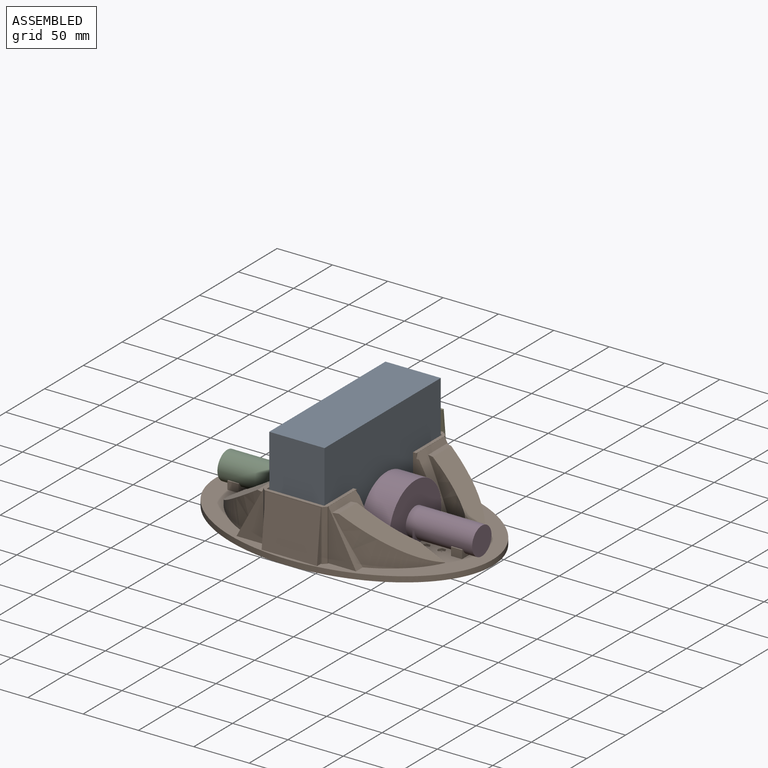
[diagram: assembled view]
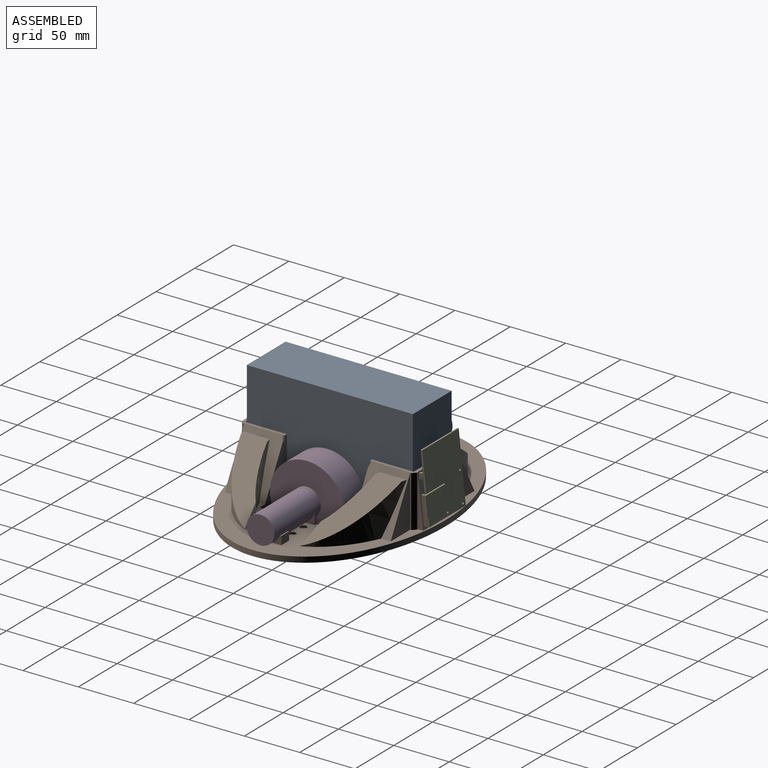
[diagram: assembled view, second angle]
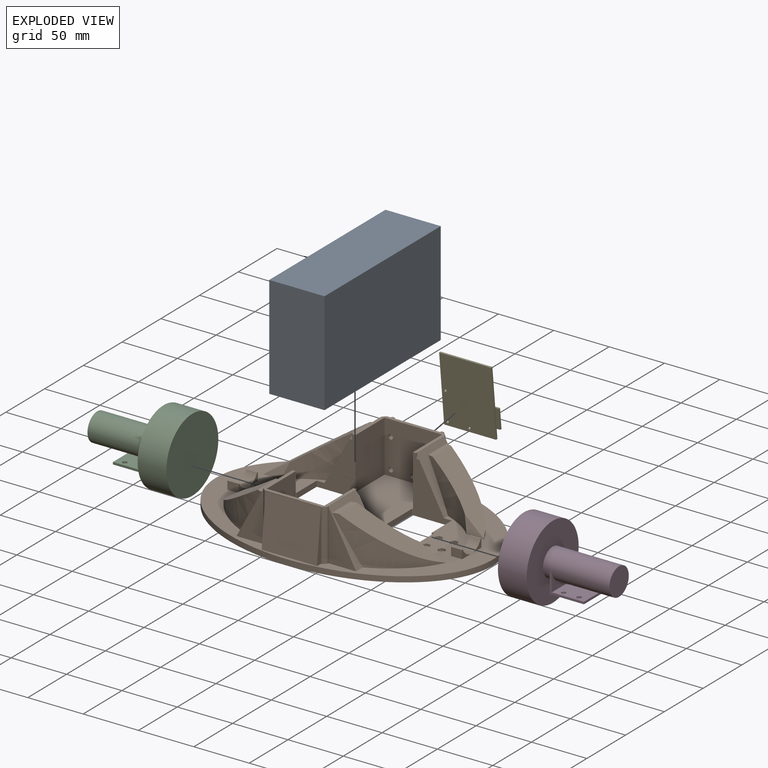
[diagram: exploded view]
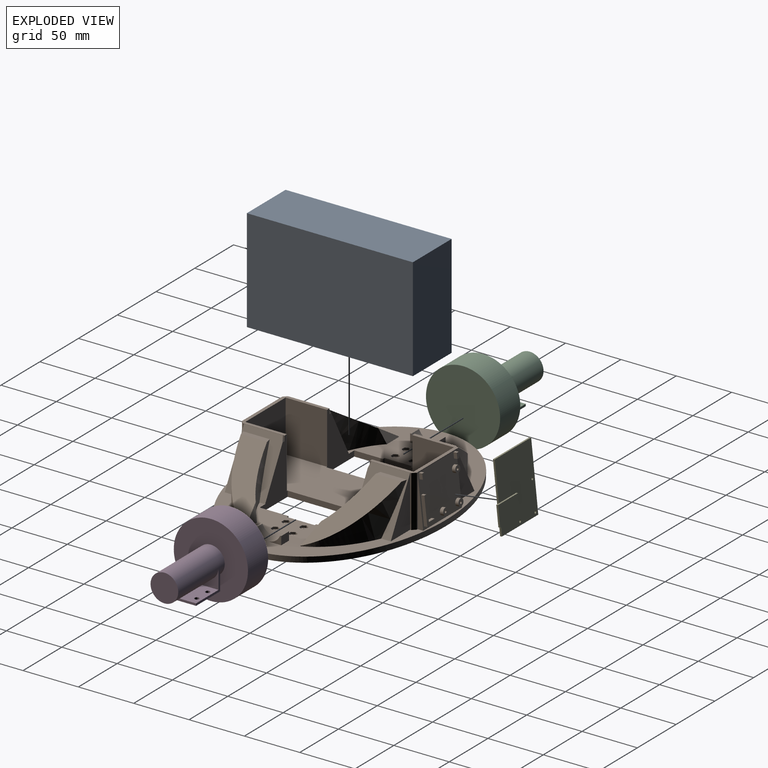
[diagram: exploded view, second angle]
FCSTD DOCUMENT  (FreeCAD 1.0RUnknown)
Label: chassis-v1
License: All rights reserved
LicenseURL: https://en.wikipedia.org/wiki/All_rights_reserved
objects: Sketcher::SketchObject×12, PartDesign::Pocket×7, PartDesign::Pad×6, App::Link×5, PartDesign::Chamfer×3, Spreadsheet::Sheet×1, PartDesign::Plane×1, PartDesign::Body×1, App::Part×1, Assembly::JointGroup×1, Assembly::AssemblyObject×1
note: 74 computed .brp shape members not serialized (recipe doc carries the construction recipe); baked Part::Feature solids carry a one-line shape summary decoded from their .brp
EXTERNAL_REF file=common-components.FCStd obj=Spreadsheet
EXTERNAL_REF file=common-components.FCStd obj=Spreadsheet001
EXTERNAL_REF file=common-components.FCStd obj=Spreadsheet002
EXTERNAL_REF file=common-components.FCStd obj=Part005
EXTERNAL_REF file=common-components.FCStd obj=Part
EXTERNAL_REF file=common-components.FCStd obj=Part002

FEATURE [Spreadsheet::Sheet] Spreadsheet  label="dim"
  cells = A1='Wheel distance; B1(wheel_distance)==<<common-components>>#<<battery_dim>>.width; C1='mm; A2='Angular velocity; B2==<<common-components>>#<<dc_motor_dim>>.max_speed / ((wheel_distance / 2 + <<common-components>>#<<dc_motor_dim>>.wheel_width / 2) / 1000); C2='rad/s; D2==B2 / (2 * pi); E2='Hz; A3='Angular momentum; B3==B2 * <<common-components>>#<<dim>>.max_weight * (<<common-components>>#<<dim>>.max_diameter / 2 / 1000) ^ 2; C3='kg*m^2/s
FEATURE [Sketcher::SketchObject] Sketch015
  ArcFitTolerance = 0
  AttachmentSupport = -> [XY_Plane]
  FullyConstrained = true
  MakeInternals = false
  MapMode = 5
  expr: Constraints[11] = <<common-components>>#<<battery_dim>>.width + <<common-components>>#<<battery_dim>>.tolerance * 2
  expr: Constraints[12] = <<common-components>>#<<battery_dim>>.length + <<common-components>>#<<battery_dim>>.tolerance * 2
  expr: Constraints[50] = <<common-components>>#<<dc_motor_dim>>.wheel_diameter + <<common-components>>#<<dc_motor_dim>>.wheel_tolerance * 2
  sketch-geometry (20):
    g0: LineSegment StartX=-26 StartY=76 StartZ=0 EndX=26 EndY=76 EndZ=0
    g1: LineSegment [constr] StartX=26 StartY=76 StartZ=0 EndX=26 EndY=-76 EndZ=0
    g2: LineSegment StartX=26 StartY=-76 StartZ=0 EndX=-26 EndY=-76 EndZ=0
    g3: LineSegment [constr] StartX=-26 StartY=-76 StartZ=0 EndX=-26 EndY=76 EndZ=0
    g4: GeomPoint X=1.1e-15 Y=-76 Z=0
    g5: GeomPoint X=-1.1e-15 Y=76 Z=0
    g6: LineSegment StartX=26 StartY=76 StartZ=0 EndX=26 EndY=38.5 EndZ=0
    g7: LineSegment StartX=26 StartY=38.5 StartZ=0 EndX=29 EndY=38.5 EndZ=0
    g8: LineSegment StartX=29 StartY=38.5 StartZ=0 EndX=29 EndY=79 EndZ=0
    g9: LineSegment StartX=29 StartY=79 StartZ=0 EndX=-29 EndY=79 EndZ=0
    g10: LineSegment StartX=-29 StartY=79 StartZ=0 EndX=-29 EndY=38.5 EndZ=0
    g11: LineSegment StartX=-29 StartY=38.5 StartZ=0 EndX=-26 EndY=38.5 EndZ=0
    g12: LineSegment StartX=-26 StartY=38.5 StartZ=0 EndX=-26 EndY=76 EndZ=0
    g13: LineSegment StartX=-26 StartY=-38.5 StartZ=0 EndX=-26 EndY=-76 EndZ=0
    g14: LineSegment StartX=-26 StartY=-38.5 StartZ=0 EndX=-29 EndY=-38.5 EndZ=0
    g15: LineSegment StartX=-29 StartY=-38.5 StartZ=0 EndX=-29 EndY=-79 EndZ=0
    g16: LineSegment StartX=-29 StartY=-79 StartZ=0 EndX=29 EndY=-79 EndZ=0
    g17: LineSegment StartX=29 StartY=-79 StartZ=0 EndX=29 EndY=-38.5 EndZ=0
    g18: LineSegment StartX=29 StartY=-38.5 StartZ=0 EndX=26 EndY=-38.5 EndZ=0
    g19: LineSegment StartX=26 StartY=-38.5 StartZ=0 EndX=26 EndY=-76 EndZ=0
  constraints (53):
    c: Coincident(g0,g1)
    c: Coincident(g1,g2)
    c: Coincident(g2,g3)
    c: Coincident(g3,g0)
    c: Horizontal(g0)
    c: Horizontal(g2)
    c: Vertical(g1)
    c: Vertical(g3)
    c: Symmetric(g2,g1,g4)
    c: Symmetric(g0,g0,g5)
    c: Symmetric(g5,g4,g-1)
    c: Distance(g0) = 52
    c: Distance(g1) = 152
    c: PointOnObject(g6,g1)
    c: Coincident(g7,g6)
    c: Horizontal(g7)
    c: Coincident(g8,g7)
    c: Vertical(g8)
    c: Coincident(g9,g8)
    c: Horizontal(g9)
    c: Coincident(g10,g9)
    c: Vertical(g10)
    c: Coincident(g11,g10)
    c: PointOnObject(g11,g3)
    c: Horizontal(g11)
    c: Coincident(g12,g11)
    c: PointOnObject(g13,g3)
    c: Coincident(g13,g2)
    c: Coincident(g14,g13)
    c: Horizontal(g14)
    c: Coincident(g15,g14)
    c: Vertical(g15)
    c: Coincident(g16,g15)
    c: Horizontal(g16)
    c: Coincident(g17,g16)
    c: Vertical(g17)
    c: Coincident(g18,g17)
    c: PointOnObject(g18,g1)
    c: Coincident(g19,g18)
    c: Coincident(g19,g1)
    c: Horizontal(g18)
    c: Equal(g8,g10)
    c: Equal(g15,g17)
    c: Equal(g15,g10)
    c: Equal(g11,g7)
    c: Equal(g11,g14)
    c: Equal(g14,g18)
    c: Distance(g11) = 3
    c: DistanceY(g0,g9) = 3
    c: DistanceY(g15,g2) = 3
    c: DistanceY(g13,g11) = 77
    c: Coincident(g12,g0)
    c: Coincident(g6,g0)
FEATURE [Sketcher::SketchObject] Sketch008
  ArcFitTolerance = 0
  AttachmentSupport = -> [YZ_Plane]
  FullyConstrained = true
  MakeInternals = false
  MapMode = 5
  Placement = pos=(0,0,0) rot=(0.57735,0.57735,0.57735;2.0944rad)
  expr: Constraints[1] = <<common-components>>#<<dc_motor_dim>>.motor_diameter
  expr: Constraints[2] = <<common-components>>#<<dc_motor_dim>>.bracket_motor_distance + <<common-components>>#<<dc_motor_dim>>.motor_diameter / 2
  sketch-geometry (1):
    g0: Circle CenterX=0 CenterY=17.5 CenterZ=0 NormalX=0 NormalY=0 NormalZ=1 AngleXU=0 Radius=12.5
  constraints (3):
    c: PointOnObject(g0,g-2)
    c: Diameter(g0) = 25
    c: DistanceY(g-1,g0) = 17.5
FEATURE [Sketcher::SketchObject] Sketch007
  ArcFitTolerance = 0
  AttachmentSupport = -> [XY_Plane]
  FullyConstrained = true
  MakeInternals = false
  MapMode = 5
  expr: Constraints[27] = <<common-components>>#<<dc_motor_dim>>.motor_diameter
  expr: Constraints[5] = <<dim>>.wheel_distance / 2 + <<common-components>>#<<dc_motor_dim>>.wheel_tolerance * 2 + <<common-components>>#<<dc_motor_dim>>.wheel_width + <<common-components>>#<<dc_motor_dim>>.wheel_bracket_distance + <<common-components>>#<<dc_motor_dim>>.bracket_length
  sketch-geometry (10):
    g0: LineSegment [constr] StartX=0 StartY=0 StartZ=0 EndX=-96 EndY=0 EndZ=0
    g1: LineSegment [constr] StartX=0 StartY=0 StartZ=0 EndX=96 EndY=0 EndZ=0
    g2: LineSegment StartX=-96 StartY=12.5 StartZ=0 EndX=-106 EndY=12.5 EndZ=0
    g3: LineSegment StartX=-106 StartY=12.5 StartZ=0 EndX=-106 EndY=-12.5 EndZ=0
    g4: LineSegment StartX=-106 StartY=-12.5 StartZ=0 EndX=-96 EndY=-12.5 EndZ=0
    g5: LineSegment StartX=-96 StartY=-12.5 StartZ=0 EndX=-96 EndY=12.5 EndZ=0
    g6: LineSegment StartX=96 StartY=12.5 StartZ=0 EndX=106 EndY=12.5 EndZ=0
    g7: LineSegment StartX=106 StartY=12.5 StartZ=0 EndX=106 EndY=-12.5 EndZ=0
    g8: LineSegment StartX=106 StartY=-12.5 StartZ=0 EndX=96 EndY=-12.5 EndZ=0
    g9: LineSegment StartX=96 StartY=-12.5 StartZ=0 EndX=96 EndY=12.5 EndZ=0
  constraints (28):
    c: Coincident(g0,g-1)
    c: Coincident(g1,g0)
    c: Horizontal(g1)
    c: Horizontal(g0)
    c: Equal(g1,g0)
    c: Distance(g0) = 96
    c: Coincident(g2,g3)
    c: Coincident(g3,g4)
    c: Coincident(g4,g5)
    c: Coincident(g5,g2)
    c: Horizontal(g2)
    c: Horizontal(g4)
    c: Vertical(g3)
    c: Vertical(g5)
    c: Coincident(g6,g7)
    c: Coincident(g7,g8)
    c: Coincident(g8,g9)
    c: Coincident(g9,g6)
    c: Horizontal(g6)
    c: Horizontal(g8)
    c: Vertical(g7)
    c: Vertical(g9)
    c: Symmetric(g6,g8,g1)
    c: Symmetric(g2,g4,g0)
    c: Distance(g2) = 10
    c: Equal(g9,g5)
    c: Equal(g2,g6)
    c: Distance(g3) = 25
FEATURE [Sketcher::SketchObject] Sketch019
  ArcFitTolerance = 0
  AttachmentSupport = -> [XZ_Plane]
  FullyConstrained = true
  MakeInternals = false
  MapMode = 5
  Placement = pos=(0,0,0) rot=(1,0,0;1.5708rad)
  expr: Constraints[14] = <<common-components>>#<<battery_dim>>.width + <<common-components>>#<<battery_dim>>.tolerance * 2 + 3 * 2
  expr: Constraints[15] = <<common-components>>#<<battery_dim>>.height / 2 + 5
  sketch-geometry (7):
    g0: LineSegment StartX=29 StartY=51.5 StartZ=0 EndX=100 EndY=5 EndZ=0
    g1: LineSegment StartX=100 StartY=5 StartZ=0 EndX=100 EndY=52.5 EndZ=0
    g2: LineSegment StartX=100 StartY=52.5 StartZ=0 EndX=-100 EndY=52.5 EndZ=0
    g3: LineSegment StartX=-100 StartY=52.5 StartZ=0 EndX=-100 EndY=5 EndZ=0
    g4: LineSegment StartX=-100 StartY=5 StartZ=0 EndX=-29 EndY=51.5 EndZ=0
    g5: LineSegment StartX=-29 StartY=51.5 StartZ=0 EndX=29 EndY=51.5 EndZ=0
    g6: GeomPoint [constr] X=1.5e-15 Y=52.5 Z=0
  constraints (19):
    c: Coincident(g1,g0)
    c: Coincident(g2,g1)
    c: Horizontal(g2)
    c: Coincident(g3,g2)
    c: Coincident(g4,g3)
    c: Coincident(g5,g4)
    c: Coincident(g5,g0)
    c: Horizontal(g5)
    c: Vertical(g1)
    c: Vertical(g3)
    c: Equal(g0,g4)
    c: Equal(g3,g1)
    c: Symmetric(g1,g2,g6)
    c: PointOnObject(g6,g-2)
    c: Distance(g5) = 58
    c: DistanceY(g-1,g0) = 51.5
    c: DistanceY(g0,g1) = 1
    c: DistanceY(g-1,g3) = 5
    c: DistanceX(g2,g1) = 200
FEATURE [Sketcher::SketchObject] Sketch018
  ArcFitTolerance = 0
  AttachmentSupport = -> [YZ_Plane]
  FullyConstrained = true
  MakeInternals = false
  MapMode = 5
  Placement = pos=(0,0,0) rot=(0.57735,0.57735,0.57735;2.0944rad)
  expr: Constraints[10] = <<common-components>>#<<battery_dim>>.height / 2 + 5
  sketch-geometry (5):
    g0: LineSegment StartX=-40 StartY=51.5 StartZ=0 EndX=40 EndY=51.5 EndZ=0
    g1: LineSegment StartX=40 StartY=51.5 StartZ=0 EndX=25 EndY=5 EndZ=0
    g2: LineSegment StartX=25 StartY=5 StartZ=0 EndX=-25 EndY=5 EndZ=0
    g3: LineSegment StartX=-25 StartY=5 StartZ=0 EndX=-40 EndY=51.5 EndZ=0
    g4: GeomPoint [constr] X=0 Y=51.5 Z=0
  constraints (13):
    c: Horizontal(g0)
    c: Coincident(g1,g0)
    c: Coincident(g2,g1)
    c: Coincident(g3,g2)
    c: Coincident(g3,g0)
    c: Horizontal(g2)
    c: Equal(g1,g3)
    c: Symmetric(g0,g0,g4)
    c: PointOnObject(g4,g-2)
    c: DistanceY(g-1,g1) = 5
    c: DistanceY(g-1,g0) = 51.5
    c: Distance(g2) = 50
    c: Distance(g0) = 80
FEATURE [Sketcher::SketchObject] Sketch017
  ArcFitTolerance = 0
  AttachmentSupport = -> [XY_Plane]
  FullyConstrained = false
  MakeInternals = false
  MapMode = 5
  expr: Constraints[21] = <<common-components>>#<<battery_dim>>.width / 2 + <<common-components>>#<<battery_dim>>.tolerance
  expr: Constraints[22] = <<common-components>>#<<battery_dim>>.length
  expr: Constraints[23] = <<common-components>>#<<dc_motor_dim>>.wheel_diameter + <<common-components>>#<<dc_motor_dim>>.wheel_tolerance * 2 + 25
  expr: Constraints[44] = <<common-components>>#<<battery_dim>>.width / 2 + <<common-components>>#<<battery_dim>>.tolerance
  sketch-geometry (22):
    g0: ArcOfEllipse CenterX=0 CenterY=0 CenterZ=0 NormalX=0 NormalY=0 NormalZ=1 MajorRadius=105 MinorRadius=77.4108 AngleXU=-3.14159 StartAngle=4.96261 EndAngle=7.60376
    g1: LineSegment [constr] StartX=-105 StartY=0 StartZ=0 EndX=105 EndY=0 EndZ=0
    g2: LineSegment [constr] StartX=0 StartY=-77.4108 StartZ=0 EndX=0 EndY=77.4108 EndZ=0
    g3: GeomPoint [constr] X=-70.9406 Y=-8.7e-15 Z=0
    g4: GeomPoint [constr] X=70.9406 Y=0 Z=0
    g5: ArcOfEllipse CenterX=0 CenterY=0 CenterZ=0 NormalX=0 NormalY=0 NormalZ=1 MajorRadius=95 MinorRadius=53.0245 AngleXU=-3.14159 StartAngle=4.98961 EndAngle=7.57676
    g6: LineSegment [constr] StartX=-95 StartY=0 StartZ=0 EndX=95 EndY=0 EndZ=0
    g7: LineSegment [constr] StartX=0 StartY=-53.0245 StartZ=0 EndX=0 EndY=53.0245 EndZ=0
    g8: GeomPoint [constr] X=-78.8251 Y=-9.7e-15 Z=0
    g9: GeomPoint [constr] X=78.8251 Y=0 Z=0
    g10: LineSegment StartX=-26 StartY=-51 StartZ=0 EndX=-26 EndY=-75 EndZ=0
    g11: LineSegment StartX=-26 StartY=75 StartZ=0 EndX=-26 EndY=51 EndZ=0
    g12: LineSegment [constr] StartX=-26 StartY=51 StartZ=0 EndX=-26 EndY=-51 EndZ=0
    g13: LineSegment [constr] StartX=0 StartY=119.322 StartZ=0 EndX=0 EndY=-85.8681 EndZ=0
    g14: ArcOfEllipse CenterX=0 CenterY=0 CenterZ=0 NormalX=0 NormalY=0 NormalZ=1 MajorRadius=104.992 MinorRadius=77.4111 AngleXU=4e-16 StartAngle=4.96263 EndAngle=7.60374
    g15: GeomPoint [constr] X=70.9286 Y=2.84e-14 Z=0
    g16: ArcOfEllipse CenterX=0 CenterY=0 CenterZ=0 NormalX=0 NormalY=0 NormalZ=1 MajorRadius=95.0275 MinorRadius=53.0233 AngleXU=2e-16 StartAngle=4.98953 EndAngle=7.57684
    g17: GeomPoint [constr] X=78.8591 Y=1.58e-14 Z=0
    g18: LineSegment StartX=26 StartY=-51 StartZ=0 EndX=26 EndY=-75 EndZ=0
    g19: LineSegment StartX=26 StartY=75 StartZ=0 EndX=26 EndY=51 EndZ=0
    g20: LineSegment [constr] StartX=26 StartY=51 StartZ=0 EndX=26 EndY=-51 EndZ=0
    g21: GeomPoint [constr] X=26 Y=0 Z=0
  constraints (41):
    c: InternalAlignment(g1-g4 -> g0) x4
    c: Coincident(g0,g-1)
    c: InternalAlignment(g6-g9 -> g5) x4
    c: Coincident(g5,g0)
    c: PointOnObject(g1,g-1)
    c: PointOnObject(g6,g1)
    c: Coincident(g10,g5)
    c: Coincident(g10,g0)
    c: Coincident(g11,g0)
    c: Coincident(g11,g5)
    c: Vertical(g11)
    c: Vertical(g10)
    c: Coincident(g12,g5)
    c: Coincident(g12,g5)
    c: Vertical(g12)
    c: DistanceX(g5,g0) = 26
    c: DistanceY(g0,g0) = 150
    c: Distance(g12) = 102
    c: DistanceX(g6,g0) = 95
    c: DistanceX(g1,g0) = 105
    c: PointOnObject(g13,g-2)
    c: PointOnObject(g13,g-2)
    c: InternalAlignment(g15,g14)
    c: InternalAlignment(g17,g16)
    c: Coincident(g16,g14)
    c: Coincident(g18,g16)
    c: Coincident(g18,g14)
    c: Coincident(g19,g14)
    c: Coincident(g19,g16)
    c: Coincident(g20,g16)
    c: Coincident(g20,g16)
    c: Distance(g20) = 102
    c: Coincident(g14,g0)
    c: Vertical(g19)
    c: Vertical(g20)
    c: Vertical(g18)
    c: DistanceY(g14,g0) = 0
    c: DistanceY(g0,g14) = 0
    c: DistanceX(g0,g16) = 26
    c: PointOnObject(g21,g1)
    c: Symmetric(g16,g16,g21)
FEATURE [Sketcher::SketchObject] Sketch006
  ArcFitTolerance = 0
  AttachmentSupport = -> [XY_Plane]
  FullyConstrained = true
  MakeInternals = false
  MapMode = 5
  expr: Constraints[10] = <<common-components>>#<<battery_dim>>.length
  expr: Constraints[11] = <<common-components>>#<<battery_dim>>.width
  expr: Constraints[16] = <<common-components>>#<<dc_motor_dim>>.wheel_diameter + <<common-components>>#<<dc_motor_dim>>.wheel_tolerance * 2
  expr: Constraints[47] = <<common-components>>#<<battery_dim>>.tolerance
  expr: Constraints[48] = <<common-components>>#<<battery_dim>>.tolerance
  expr: Constraints[49] = <<common-components>>#<<battery_dim>>.tolerance
  expr: Constraints[60] = <<common-components>>#<<battery_dim>>.length / 2 - <<common-components>>#<<dc_motor_dim>>.wheel_diameter / 2 - <<common-components>>#<<dc_motor_dim>>.wheel_tolerance
  expr: Constraints[89] = <<common-components>>#<<battery_dim>>.tolerance
  expr: Constraints[90] = <<common-components>>#<<battery_dim>>.tolerance
  expr: Constraints[91] = <<common-components>>#<<battery_dim>>.tolerance
  sketch-geometry (40):
    g0: LineSegment [constr] StartX=-25 StartY=75 StartZ=0 EndX=25 EndY=75 EndZ=0
    g1: LineSegment [constr] StartX=25 StartY=75 StartZ=0 EndX=25 EndY=-75 EndZ=0
    g2: LineSegment [constr] StartX=25 StartY=-75 StartZ=0 EndX=-25 EndY=-75 EndZ=0
    g3: LineSegment [constr] StartX=-25 StartY=-75 StartZ=0 EndX=-25 EndY=75 EndZ=0
    g4: GeomPoint [constr] X=0 Y=0 Z=0
    g5: GeomPoint [constr] X=-25 Y=38.5 Z=0
    g6: GeomPoint [constr] X=-25 Y=-38.5 Z=0
    g7: GeomPoint [constr] X=25 Y=38.5 Z=0
    g8: GeomPoint [constr] X=25 Y=-38.5 Z=0
    g9: GeomPoint [constr] X=25 Y=0 Z=0
    g10: LineSegment StartX=-26 StartY=38.5 StartZ=0 EndX=-26 EndY=75 EndZ=0
    g11: LineSegment StartX=-26 StartY=75 StartZ=0 EndX=-29 EndY=75 EndZ=0
    g12: LineSegment StartX=-29 StartY=75 StartZ=0 EndX=-29 EndY=38.5 EndZ=0
    g13: LineSegment StartX=-29 StartY=38.5 StartZ=0 EndX=-26 EndY=38.5 EndZ=0
    g14: LineSegment StartX=-26 StartY=-38.5 StartZ=0 EndX=-29 EndY=-38.5 EndZ=0
    g15: LineSegment StartX=-29 StartY=-38.5 StartZ=0 EndX=-29 EndY=-75 EndZ=0
    g16: LineSegment StartX=-29 StartY=-75 StartZ=0 EndX=-26 EndY=-75 EndZ=0
    g17: LineSegment StartX=-26 StartY=-75 StartZ=0 EndX=-26 EndY=-38.5 EndZ=0
    g18: LineSegment StartX=-25 StartY=76 StartZ=0 EndX=25 EndY=76 EndZ=0
    g19: LineSegment StartX=25 StartY=76 StartZ=0 EndX=25 EndY=79 EndZ=0
    g20: LineSegment StartX=25 StartY=79 StartZ=0 EndX=-25 EndY=79 EndZ=0
    g21: LineSegment StartX=-25 StartY=79 StartZ=0 EndX=-25 EndY=76 EndZ=0
    g22: GeomPoint [constr] X=0 Y=76 Z=0
    g23: LineSegment [constr] StartX=-26 StartY=56.75 StartZ=0 EndX=-25 EndY=56.75 EndZ=0
    g24: LineSegment [constr] StartX=-26 StartY=-56.75 StartZ=0 EndX=-25 EndY=-56.75 EndZ=0
    g25: LineSegment StartX=26 StartY=38.5 StartZ=0 EndX=26 EndY=75 EndZ=0
    g26: LineSegment StartX=26 StartY=75 StartZ=0 EndX=29 EndY=75 EndZ=0
    g27: LineSegment StartX=29 StartY=75 StartZ=0 EndX=29 EndY=38.5 EndZ=0
    g28: LineSegment StartX=29 StartY=38.5 StartZ=0 EndX=26 EndY=38.5 EndZ=0
    g29: LineSegment StartX=26 StartY=-38.5 StartZ=0 EndX=29 EndY=-38.5 EndZ=0
    g30: LineSegment StartX=29 StartY=-38.5 StartZ=0 EndX=29 EndY=-75 EndZ=0
    g31: LineSegment StartX=29 StartY=-75 StartZ=0 EndX=26 EndY=-75 EndZ=0
    g32: LineSegment StartX=26 StartY=-75 StartZ=0 EndX=26 EndY=-38.5 EndZ=0
    g33: LineSegment StartX=-25 StartY=-76 StartZ=0 EndX=25 EndY=-76 EndZ=0
    g34: LineSegment StartX=25 StartY=-76 StartZ=0 EndX=25 EndY=-79 EndZ=0
    g35: LineSegment StartX=25 StartY=-79 StartZ=0 EndX=-25 EndY=-79 EndZ=0
    g36: LineSegment StartX=-25 StartY=-79 StartZ=0 EndX=-25 EndY=-76 EndZ=0
    g37: GeomPoint [constr] X=0 Y=-76 Z=0
    g38: LineSegment [constr] StartX=25 StartY=-56.75 StartZ=0 EndX=26 EndY=-56.75 EndZ=0
    g39: LineSegment [constr] StartX=25 StartY=56.75 StartZ=0 EndX=26 EndY=56.75 EndZ=0
  constraints (103):
    c: Coincident(g0,g1)
    c: Coincident(g1,g2)
    c: Coincident(g2,g3)
    c: Coincident(g3,g0)
    c: Horizontal(g0)
    c: Horizontal(g2)
    c: Vertical(g1)
    c: Vertical(g3)
    c: Symmetric(g1,g0,g4)
    c: Coincident(g4,g-1)
    c: Distance(g1) = 150
    c: Distance(g0) = 50
    c: PointOnObject(g5,g3)
    c: PointOnObject(g6,g3)
    c: PointOnObject(g7,g1)
    c: PointOnObject(g8,g1)
    c: DistanceY(g8,g7) = 77
    c: DistanceY(g5,g7) = 0
    c: DistanceY(g8,g6) = 0
    c: Symmetric(g7,g8,g9)
    c: PointOnObject(g9,g-1)
    c: Vertical(g10)
    c: Coincident(g11,g10)
    c: Coincident(g12,g11)
    c: Vertical(g12)
    c: Coincident(g13,g12)
    c: Coincident(g13,g10)
    c: Horizontal(g14)
    c: Coincident(g15,g14)
    c: Vertical(g15)
    c: Coincident(g16,g15)
    c: Horizontal(g16)
    c: Coincident(g17,g16)
    c: Coincident(g17,g14)
    c: Vertical(g17)
    c: Equal(g14,g13)
    c: Horizontal(g13)
    c: Equal(g15,g12)
    c: Horizontal(g11)
    c: Horizontal(g18)
    c: Coincident(g19,g18)
    c: Vertical(g19)
    c: Coincident(g20,g19)
    c: Horizontal(g20)
    c: Coincident(g21,g20)
    c: Coincident(g21,g18)
    c: Vertical(g21)
    c: DistanceX(g10,g0) = 1
    c: DistanceX(g16,g2) = 1
    c: DistanceY(g0,g18) = 1
    c: Equal(g21,g11)
    c: Symmetric(g18,g18,g22)
    c: PointOnObject(g22,g-2)
    c: Horizontal(g23)
    c: Horizontal(g24)
    c: Symmetric(g0,g5,g23)
    c: Symmetric(g6,g2,g24)
    c: Symmetric(g14,g16,g24)
    c: Symmetric(g10,g10,g23)
    c: Distance(g11) = 3
    c: Distance(g12) = 36.5
    c: Vertical(g25)
    c: Coincident(g26,g25)
    c: Coincident(g27,g26)
    c: Vertical(g27)
    c: Coincident(g28,g27)
    c: Coincident(g28,g25)
    c: Horizontal(g29)
    c: Coincident(g30,g29)
    c: Vertical(g30)
    c: Coincident(g31,g30)
    c: Horizontal(g31)
    c: Coincident(g32,g31)
    c: Coincident(g32,g29)
    c: Vertical(g32)
    c: Equal(g29,g28)
    c: Horizontal(g28)
    c: Equal(g30,g27)
    c: Horizontal(g26)
    c: Distance(g26) = 3
    c: Horizontal(g33)
    c: Coincident(g34,g33)
    c: Vertical(g34)
    c: Coincident(g35,g34)
    c: Horizontal(g35)
    c: Coincident(g36,g35)
    c: Coincident(g36,g33)
    c: Vertical(g36)
    c: Symmetric(g33,g33,g37)
    c: DistanceY(g33,g1) = 1
    c: DistanceX(g0,g25) = 1
    c: DistanceX(g1,g31) = 1
    c: Equal(g31,g34)
    c: Horizontal(g38)
    c: Horizontal(g39)
    c: Symmetric(g25,g25,g39)
    c: Symmetric(g29,g31,g38)
    c: Symmetric(g8,g1,g38)
    c: Symmetric(g0,g7,g39)
    c: PointOnObject(g37,g-2)
    c: Equal(g27,g10)
    c: Equal(g33,g18)
    c: Equal(g18,g0)
FEATURE [Sketcher::SketchObject] Sketch
  ArcFitTolerance = 0
  AttachmentSupport = -> [XY_Plane]
  FullyConstrained = false
  MakeInternals = false
  MapMode = 5
  expr: Constraints[11] = <<common-components>>#<<dc_motor_dim>>.wheel_diameter + <<common-components>>#<<dc_motor_dim>>.wheel_tolerance * 2
  expr: Constraints[12] = <<common-components>>#<<dc_motor_dim>>.wheel_width + <<common-components>>#<<dc_motor_dim>>.wheel_tolerance
  expr: Constraints[164] = <<common-components>>#<<dc_motor_dim>>.bracket_thickness
  expr: Constraints[171] = <<common-components>>#<<dc_motor_dim>>.bracket_length / 2 + <<common-components>>#<<dc_motor_dim>>.bracket_thickness - 2.5
  expr: Constraints[22] = <<common-components>>#<<battery_dim>>.length
  expr: Constraints[23] = <<common-components>>#<<battery_dim>>.width
  expr: Constraints[25] = <<common-components>>#<<dim>>.max_diameter
  expr: Constraints[41] = <<common-components>>#<<dc_motor_dim>>.bracket_screw_diameter
  expr: Constraints[45] = <<common-components>>#<<dc_motor_dim>>.bracket_hole_width
  expr: Constraints[46] = <<common-components>>#<<dc_motor_dim>>.bracket_hole_length
  expr: Constraints[57] = <<common-components>>#<<dc_motor_dim>>.motor_diameter
  expr: Constraints[63] = <<common-components>>#<<dc_motor_dim>>.wheel_tolerance
  expr: Constraints[67] = <<common-components>>#<<dc_motor_dim>>.wheel_tolerance
  expr: Constraints[86] = <<common-components>>#<<dc_motor_dim>>.bracket_length + <<common-components>>#<<dc_motor_dim>>.bracket_thickness
  sketch-geometry (81):
    g0: Circle [constr] CenterX=0 CenterY=0 CenterZ=0 NormalX=0 NormalY=0 NormalZ=1 AngleXU=0 Radius=125
    g1: LineSegment StartX=-56 StartY=38.5 StartZ=0 EndX=-25 EndY=38.5 EndZ=0
    g2: LineSegment StartX=-25 StartY=38.5 StartZ=0 EndX=-25 EndY=-38.5 EndZ=0
    g3: LineSegment StartX=-25 StartY=-38.5 StartZ=0 EndX=-56 EndY=-38.5 EndZ=0
    g4: LineSegment [constr] StartX=-56 StartY=-38.5 StartZ=0 EndX=-56 EndY=38.5 EndZ=0
    g5: GeomPoint X=-56 Y=0 Z=0
    g6: GeomPoint X=0 Y=0 Z=0
    g7: LineSegment [constr] StartX=-56 StartY=-12.5 StartZ=0 EndX=-56 EndY=12.5 EndZ=0
    g8: LineSegment [constr] StartX=-25 StartY=-75 StartZ=0 EndX=25 EndY=-75 EndZ=0
    g9: LineSegment [constr] StartX=25 StartY=-75 StartZ=0 EndX=25 EndY=75 EndZ=0
    g10: LineSegment [constr] StartX=25 StartY=75 StartZ=0 EndX=-25 EndY=75 EndZ=0
    g11: LineSegment [constr] StartX=-25 StartY=75 StartZ=0 EndX=-25 EndY=-75 EndZ=0
    g12: GeomPoint [constr] X=4e-16 Y=-75 Z=0
    g13: GeomPoint [constr] X=-4e-16 Y=75 Z=0
    g14: GeomPoint [constr] X=0 Y=0 Z=0
    g15: Circle CenterX=-70.5 CenterY=8 CenterZ=0 NormalX=0 NormalY=0 NormalZ=1 AngleXU=0 Radius=1.5
    g16: Circle CenterX=-70.5 CenterY=-8 CenterZ=0 NormalX=0 NormalY=0 NormalZ=1 AngleXU=0 Radius=1.5
    g17: Circle CenterX=-84.5 CenterY=-8 CenterZ=0 NormalX=0 NormalY=0 NormalZ=1 AngleXU=0 Radius=1.5
    g18: Circle CenterX=-84.5 CenterY=8 CenterZ=0 NormalX=0 NormalY=0 NormalZ=1 AngleXU=0 Radius=1.5
    g19: LineSegment [constr] StartX=-84.5 StartY=8 StartZ=0 EndX=-70.5 EndY=8 EndZ=0
    g20: LineSegment [constr] StartX=-84.5 StartY=-8 StartZ=0 EndX=-70.5 EndY=-8 EndZ=0
    g21: LineSegment [constr] StartX=-84.5 StartY=-8 StartZ=0 EndX=-84.5 EndY=8 EndZ=0
    g22: GeomPoint [constr] X=-84.5 Y=0 Z=0
    g23: LineSegment [constr] StartX=-56 StartY=38.5 StartZ=0 EndX=-56 EndY=12.5 EndZ=0
    g24: LineSegment [constr] StartX=-56 StartY=-38.5 StartZ=0 EndX=-56 EndY=-12.5 EndZ=0
    g25: LineSegment [constr] StartX=-56 StartY=-12.5 StartZ=0 EndX=-63 EndY=-12.5 EndZ=0
    g26: LineSegment StartX=-63 StartY=-12.5 StartZ=0 EndX=-63 EndY=12.5 EndZ=0
    g27: LineSegment [constr] StartX=-63 StartY=12.5 StartZ=0 EndX=-56 EndY=12.5 EndZ=0
    g28: LineSegment StartX=-56 StartY=38.5 StartZ=0 EndX=-61 EndY=38.5 EndZ=0
    g29: LineSegment StartX=-61 StartY=38.5 StartZ=0 EndX=-61 EndY=12.5 EndZ=0
    g30: LineSegment StartX=-56 StartY=-38.5 StartZ=0 EndX=-61 EndY=-38.5 EndZ=0
    g31: LineSegment StartX=-61 StartY=-38.5 StartZ=0 EndX=-61 EndY=-12.5 EndZ=0
    g32: LineSegment StartX=-63 StartY=12.5 StartZ=0 EndX=-61 EndY=12.5 EndZ=0
    g33: LineSegment StartX=-63 StartY=-12.5 StartZ=0 EndX=-61 EndY=-12.5 EndZ=0
    g34: LineSegment [constr] StartX=-56 StartY=12.5 StartZ=0 EndX=-95 EndY=12.5 EndZ=0
    g35: LineSegment [constr] StartX=-95 StartY=12.5 StartZ=0 EndX=-95 EndY=-12.5 EndZ=0
    g36: LineSegment [constr] StartX=-95 StartY=-12.5 StartZ=0 EndX=-56 EndY=-12.5 EndZ=0
    g37: LineSegment [constr] StartX=-56 StartY=-12.5 StartZ=0 EndX=-56 EndY=12.5 EndZ=0
    g38: GeomPoint [constr] X=-77.5 Y=0 Z=0
    g39: LineSegment [constr] StartX=-77.5 StartY=0 StartZ=0 EndX=-77.5 EndY=8 EndZ=0
    g40: LineSegment StartX=56 StartY=38.5 StartZ=0 EndX=25 EndY=38.5 EndZ=0
    g41: LineSegment StartX=25 StartY=38.5 StartZ=0 EndX=25 EndY=-38.5 EndZ=0
    g42: LineSegment StartX=25 StartY=-38.5 StartZ=0 EndX=56 EndY=-38.5 EndZ=0
    g43: LineSegment [constr] StartX=56 StartY=-38.5 StartZ=0 EndX=56 EndY=38.5 EndZ=0
    g44: GeomPoint X=56 Y=0 Z=0
    g45: LineSegment [constr] StartX=56 StartY=-12.5 StartZ=0 EndX=56 EndY=12.5 EndZ=0
    g46: Circle CenterX=70.5 CenterY=8 CenterZ=0 NormalX=0 NormalY=0 NormalZ=1 AngleXU=0 Radius=1.5
    g47: Circle CenterX=70.5 CenterY=-8 CenterZ=0 NormalX=0 NormalY=0 NormalZ=1 AngleXU=0 Radius=1.5
    g48: Circle CenterX=84.5 CenterY=-8 CenterZ=0 NormalX=0 NormalY=0 NormalZ=1 AngleXU=0 Radius=1.5
    g49: Circle CenterX=84.5 CenterY=8 CenterZ=0 NormalX=0 NormalY=0 NormalZ=1 AngleXU=0 Radius=1.5
    g50: LineSegment [constr] StartX=84.5 StartY=8 StartZ=0 EndX=70.5 EndY=8 EndZ=0
    g51: LineSegment [constr] StartX=84.5 StartY=-8 StartZ=0 EndX=70.5 EndY=-8 EndZ=0
    g52: LineSegment [constr] StartX=84.5 StartY=-8 StartZ=0 EndX=84.5 EndY=8 EndZ=0
    g53: GeomPoint [constr] X=84.5 Y=3.5e-15 Z=0
    g54: LineSegment [constr] StartX=56 StartY=38.5 StartZ=0 EndX=56 EndY=12.5 EndZ=0
    g55: LineSegment [constr] StartX=56 StartY=-38.5 StartZ=0 EndX=56 EndY=-12.5 EndZ=0
    g56: LineSegment [constr] StartX=56 StartY=-12.5 StartZ=0 EndX=63 EndY=-12.5 EndZ=0
    g57: LineSegment StartX=63 StartY=-12.5 StartZ=0 EndX=63 EndY=12.5 EndZ=0
    g58: LineSegment [constr] StartX=63 StartY=12.5 StartZ=0 EndX=56 EndY=12.5 EndZ=0
    g59: LineSegment StartX=56 StartY=38.5 StartZ=0 EndX=61 EndY=38.5 EndZ=0
    g60: LineSegment StartX=61 StartY=38.5 StartZ=0 EndX=61 EndY=12.5 EndZ=0
    g61: LineSegment StartX=56 StartY=-38.5 StartZ=0 EndX=61 EndY=-38.5 EndZ=0
    g62: LineSegment StartX=61 StartY=-38.5 StartZ=0 EndX=61 EndY=-12.5 EndZ=0
    g63: LineSegment StartX=63 StartY=12.5 StartZ=0 EndX=61 EndY=12.5 EndZ=0
    g64: LineSegment StartX=63 StartY=-12.5 StartZ=0 EndX=61 EndY=-12.5 EndZ=0
    g65: LineSegment [constr] StartX=56 StartY=12.5 StartZ=0 EndX=95 EndY=12.5 EndZ=0
    g66: LineSegment [constr] StartX=95 StartY=12.5 StartZ=0 EndX=95 EndY=-12.5 EndZ=0
    g67: LineSegment [constr] StartX=95 StartY=-12.5 StartZ=0 EndX=56 EndY=-12.5 EndZ=0
    g68: LineSegment [constr] StartX=56 StartY=-12.5 StartZ=0 EndX=56 EndY=12.5 EndZ=0
    g69: GeomPoint [constr] X=77.5 Y=0 Z=0
    g70: LineSegment [constr] StartX=77.5 StartY=0 StartZ=0 EndX=77.5 EndY=8 EndZ=0
    g71: LineSegment [constr] StartX=-77.5 StartY=0 StartZ=0 EndX=-63 EndY=0 EndZ=0
    g72: LineSegment [constr] StartX=77.5 StartY=0 StartZ=0 EndX=63 EndY=0 EndZ=0
    g73: Ellipse CenterX=0 CenterY=0 CenterZ=0 NormalX=0 NormalY=0 NormalZ=1 MajorRadius=125 MinorRadius=86.8613 AngleXU=0
    g74: LineSegment [constr] StartX=125 StartY=0 StartZ=0 EndX=-125 EndY=0 EndZ=0
    g75: LineSegment [constr] StartX=0 StartY=86.8613 StartZ=0 EndX=0 EndY=-86.8613 EndZ=0
    g76: GeomPoint [constr] X=89.8895 Y=0 Z=0
    g77: GeomPoint [constr] X=-89.8895 Y=0 Z=0
    g78: GeomPoint [constr] X=125 Y=0 Z=0
    g79: LineSegment [constr] StartX=25 StartY=-75 StartZ=0 EndX=26.49 EndY=-84.8884 EndZ=0
    g80: GeomPoint [constr] X=26.49 Y=-84.8884 Z=0
  constraints (191):
    c: Coincident(g0,g-1)
    c: Coincident(g1,g2)
    c: Coincident(g2,g3)
    c: Coincident(g3,g4)
    c: Coincident(g4,g1)
    c: Horizontal(g1)
    c: Horizontal(g3)
    c: Vertical(g2)
    c: Vertical(g4)
    c: Symmetric(g1,g3,g5)
    c: PointOnObject(g5,g-1)
    c: Distance(g2) = 77
    c: Distance(g1) = 31
    c: Vertical(g7)
    c: Coincident(g8,g9)
    c: Coincident(g9,g10)
    c: Coincident(g10,g11)
    c: Coincident(g11,g8)
    c: Horizontal(g8)
    c: Horizontal(g10)
    c: Vertical(g9)
    c: Vertical(g11)
    c: Distance(g11) = 150
    c: Distance(g10) = 50
    c: Symmetric(g8,g8,g12)
    c: Diameter(g0) = 250
    c: Symmetric(g10,g9,g13)
    c: Symmetric(g13,g12,g14)
    c: Coincident(g14,g6)
    c: Coincident(g19,g18)
    c: Coincident(g19,g15)
    c: Horizontal(g19)
    c: Coincident(g20,g17)
    c: Coincident(g20,g16)
    c: Horizontal(g20)
    c: Coincident(g21,g17)
    c: Coincident(g21,g18)
    c: Vertical(g21)
    c: Equal(g15,g18)
    c: Equal(g18,g17)
    c: Equal(g17,g16)
    c: Diameter(g18) = 3
    c: Equal(g19,g20)
    c: Symmetric(g18,g17,g22)
    c: PointOnObject(g22,g-1)
    c: Distance(g21) = 16
    c: Distance(g19) = 14
    c: Coincident(g23,g1)
    c: Coincident(g24,g3)
    c: Coincident(g25,g24)
    c: Coincident(g26,g25)
    c: Vertical(g26)
    c: Coincident(g27,g26)
    c: Coincident(g27,g23)
    c: Vertical(g23)
    c: Horizontal(g27)
    c: Horizontal(g25)
    c: Distance(g26) = 25
    c: Coincident(g28,g1)
    c: Horizontal(g28)
    c: Coincident(g29,g28)
    c: PointOnObject(g29,g27)
    c: Vertical(g29)
    c: Distance(g28) = 5
    c: Coincident(g30,g3)
    c: Horizontal(g30)
    c: Coincident(g31,g30)
    c: Distance(g30) = 5
    c: Vertical(g31)
    c: Coincident(g32,g26)
    c: Coincident(g32,g29)
    c: Coincident(g33,g26)
    c: Coincident(g33,g31)
    c: Symmetric(g24,g23,g5)
    c: PointOnObject(g31,g25)
    c: Coincident(g34,g35)
    c: Coincident(g35,g36)
    c: Coincident(g36,g37)
    c: Coincident(g37,g34)
    c: Horizontal(g34)
    c: Horizontal(g36)
    c: Vertical(g35)
    c: Vertical(g37)
    c: Coincident(g34,g7)
    c: Equal(g26,g35)
    c: Coincident(g7,g23)
    c: DistanceX(g34,g26) = 32
    c: PointOnObject(g38,g-1)
    c: Coincident(g39,g38)
    c: Vertical(g39)
    c: Symmetric(g18,g15,g39)
    c: Coincident(g40,g41)
    c: Coincident(g41,g42)
    c: Coincident(g42,g43)
    c: Coincident(g43,g40)
    c: Horizontal(g40)
    c: Horizontal(g42)
    c: Vertical(g41)
    c: Vertical(g43)
    c: Symmetric(g40,g42,g44)
    c: Distance(g41) = 77
    c: Distance(g40) = 31
    c: Vertical(g45)
    c: Coincident(g50,g49)
    c: Coincident(g50,g46)
    c: Horizontal(g50)
    c: Coincident(g51,g48)
    c: Coincident(g51,g47)
    c: Horizontal(g51)
    c: Coincident(g52,g48)
    c: Coincident(g52,g49)
    c: Vertical(g52)
    c: Equal(g46,g49)
    c: Equal(g49,g48)
    c: Equal(g48,g47)
    c: Equal(g50,g51)
    c: Symmetric(g49,g48,g53)
    c: Distance(g52) = 16
    c: Distance(g50) = 14
    c: Coincident(g54,g40)
    c: Coincident(g55,g42)
    c: Coincident(g56,g55)
    c: Coincident(g57,g56)
    c: Vertical(g57)
    c: Coincident(g58,g57)
    c: Coincident(g58,g54)
    c: Vertical(g54)
    c: Horizontal(g58)
    c: Horizontal(g56)
    c: Distance(g57) = 25
    c: Coincident(g59,g40)
    c: Horizontal(g59)
    c: Coincident(g60,g59)
    c: PointOnObject(g60,g58)
    c: Vertical(g60)
    c: Distance(g59) = 5
    c: Coincident(g61,g42)
    c: Horizontal(g61)
    c: Coincident(g62,g61)
    c: Distance(g61) = 5
    c: Vertical(g62)
    c: Coincident(g63,g57)
    c: Coincident(g63,g60)
    c: Coincident(g64,g57)
    c: Coincident(g64,g62)
    c: Symmetric(g55,g54,g44)
    c: PointOnObject(g62,g56)
    c: Coincident(g65,g66)
    c: Coincident(g66,g67)
    c: Coincident(g67,g68)
    c: Coincident(g68,g65)
    c: Horizontal(g65)
    c: Horizontal(g67)
    c: Vertical(g66)
    c: Vertical(g68)
    c: Coincident(g65,g45)
    c: Equal(g57,g66)
    c: Coincident(g45,g54)
    c: Coincident(g70,g69)
    c: Vertical(g70)
    c: Symmetric(g49,g46,g70)
    c: PointOnObject(g1,g11)
    c: PointOnObject(g40,g9)
    c: PointOnObject(g44,g-1)
    c: Distance(g32) = 2
    c: Equal(g63,g32)
    c: Equal(g49,g18)
    c: Equal(g39,g70)
    c: Coincident(g71,g38)
    c: PointOnObject(g71,g26)
    c: Horizontal(g71)
    c: Distance(g71) = 14.5
    c: Coincident(g72,g69)
    c: PointOnObject(g72,g57)
    c: Horizontal(g72)
    c: Equal(g72,g71)
    c: PointOnObject(g72,g-1)
    c: Equal(g65,g34)
    c: Coincident(g6,g0)
    c: InternalAlignment(g74-g77 -> g73) x4
    c: Coincident(g73,g6)
    c: PointOnObject(g78,g73)
    c: PointOnObject(g78,g0)
    c: Tangent(g73,g0,g78) = -1.5708
    c: Coincident(g79,g8)
    c: PointOnObject(g79,g73)
    c: PointOnObject(g80,g73)
    c: PointOnObject(g80,g79)
    c: Perpendicular(g73,g79,g80) = 4.71239
    c: Distance(g79) = 10
    c: PointOnObject(g74,g-1)
FEATURE [PartDesign::Pad] Pad  label="Floor"
  Direction = (0,0,1)
  Length = 5
  Length2 = 10
  Profile = -> Sketch
  ReferenceAxis = -> Sketch [N_Axis]
  Suppressed = false
  Type = 0
FEATURE [PartDesign::Pad] Pad005  label="Battery walls"
  BaseFeature = -> Pad
  Direction = (0,0,1)
  Length = 51.5
  Length2 = 10
  Profile = -> Sketch006
  ReferenceAxis = -> Sketch006 [N_Axis]
  Suppressed = false
  Type = 0
  expr: Length = <<common-components>>#<<battery_dim>>.height / 2 + 5
FEATURE [PartDesign::Chamfer] Chamfer  label="Battery wall chamfer long"
  Angle = 61.6743
  Base = -> Pad005 [Edge74,Edge82,Edge85,Edge93]
  BaseFeature = -> Pad005
  ChamferType = 2
  FlipDirection = false
  Size = 25
  Size2 = 1
  SupportTransform = false
  Suppressed = false
  UseAllEdges = false
  expr: Angle = atan(<<common-components>>#<<battery_dim>>.height / 2 / 25) * 0.999
FEATURE [PartDesign::Chamfer] Chamfer001  label="Battery wall chamfer short"
  Angle = 83.7789
  Base = -> Chamfer [Edge26,Edge35]
  BaseFeature = -> Chamfer
  ChamferType = 2
  FlipDirection = false
  Size = 5
  Size2 = 1
  SupportTransform = false
  Suppressed = false
  UseAllEdges = false
  expr: Angle = atan(<<common-components>>#<<battery_dim>>.height / 2 / 5) * 0.999
FEATURE [PartDesign::Pad] Pad014  label="ellipse battery support wall"
  BaseFeature = -> Chamfer001
  Direction = (0,0,1)
  Length = 46.5
  Length2 = 10
  Profile = -> Sketch017
  ReferenceAxis = -> Sketch017 [N_Axis]
  Suppressed = false
  Type = 0
  expr: Length = <<common-components>>#<<battery_dim>>.height / 2
FEATURE [PartDesign::Pocket] Pocket003  label="battery support cut 1"
  BaseFeature = -> Pad014
  Direction = (-1,0,0)
  Length = 250
  Length2 = 5
  Midplane = true
  Profile = -> Sketch018
  ReferenceAxis = -> Sketch018 [N_Axis]
  Suppressed = false
  Type = 0
FEATURE [PartDesign::Pocket] Pocket004  label="battery support cut 2"
  BaseFeature = -> Pocket003
  Direction = (0,1,-2e-16)
  Length = 200
  Length2 = 5
  Midplane = true
  Profile = -> Sketch019
  ReferenceAxis = -> Sketch019 [N_Axis]
  Suppressed = false
  Type = 0
FEATURE [PartDesign::Pad] Pad006  label="Motor support"
  BaseFeature = -> Pocket004
  Direction = (0,0,1)
  Length = 12.5
  Length2 = 10
  Profile = -> Sketch007
  ReferenceAxis = -> Sketch007 [N_Axis]
  Suppressed = false
  Type = 0
FEATURE [PartDesign::Pocket] Pocket001  label="Motor support cut"
  BaseFeature = -> Pad006
  Direction = (-1,0,0)
  Length = 250
  Length2 = 5
  Midplane = true
  Profile = -> Sketch008
  ReferenceAxis = -> Sketch008 [N_Axis]
  Suppressed = false
  Type = 0
  expr: Length = <<common-components>>#<<dim>>.max_diameter
FEATURE [PartDesign::Pad] Pad012  label="Battery support corner"
  BaseFeature = -> Pocket001
  Direction = (0,0,1)
  Length = 51.5
  Length2 = 10
  Profile = -> Sketch015
  ReferenceAxis = -> Sketch015 [N_Axis]
  Suppressed = false
  Type = 0
  expr: Length = <<common-components>>#<<battery_dim>>.height / 2 + 5
FEATURE [PartDesign::Chamfer] Chamfer005  label="motor support chamfer"
  Angle = 45
  Base = -> Pad012 [Edge238,Edge249,Edge144,Edge133]
  BaseFeature = -> Pad012
  ChamferType = 0
  FlipDirection = false
  Size = 3
  Size2 = 1
  SupportTransform = false
  Suppressed = false
  UseAllEdges = false
FEATURE [Sketcher::SketchObject] Sketch020  label="hex-hole-sketch"
  ArcFitTolerance = 0
  AttachmentSupport = -> [Pad]
  FullyConstrained = true
  MakeInternals = false
  MapMode = 5
  Placement = pos=(0,0,5) rot=(0,0,1;0rad)
  expr: Constraints[11] = <<common-components>>#<<dc_motor_dim>>.bracket_hole_width
  expr: Constraints[12] = <<common-components>>#<<dc_motor_dim>>.bracket_hole_length
  expr: Constraints[204] = <<common-components>>#<<dc_motor_dim>>.wheel_width + 2 * <<common-components>>#<<dc_motor_dim>>.wheel_tolerance + <<common-components>>#<<dc_motor_dim>>.bracket_thickness + <<common-components>>#<<battery_dim>>.width / 2 + <<common-components>>#<<dc_motor_dim>>.bracket_length / 2 + <<common-components>>#<<dc_motor_dim>>.bracket_thickness - 2.5
  expr: Constraints[3] = <<common-components>>#<<dc_motor_dim>>.bracket_nut_size
  sketch-geometry (86):
    g0: Circle [constr] CenterX=-84.5 CenterY=8 CenterZ=0 NormalX=0 NormalY=0 NormalZ=1 AngleXU=0 Radius=3
    g1: Circle [constr] CenterX=-84.5 CenterY=-8 CenterZ=0 NormalX=0 NormalY=0 NormalZ=1 AngleXU=0 Radius=3
    g2: Circle [constr] CenterX=-70.5 CenterY=-8 CenterZ=0 NormalX=0 NormalY=0 NormalZ=1 AngleXU=0 Radius=3
    g3: Circle [constr] CenterX=-70.5 CenterY=8 CenterZ=0 NormalX=0 NormalY=0 NormalZ=1 AngleXU=0 Radius=3
    g4: LineSegment [constr] StartX=-84.5 StartY=8 StartZ=0 EndX=-70.5 EndY=8 EndZ=0
    g5: LineSegment [constr] StartX=-70.5 StartY=8 StartZ=0 EndX=-70.5 EndY=-8 EndZ=0
    g6: LineSegment [constr] StartX=-84.5 StartY=-8 StartZ=0 EndX=-70.5 EndY=-8 EndZ=0
    g7: GeomPoint [constr] X=-77.5 Y=-8 Z=0
    g8: GeomPoint [constr] X=-77.5 Y=8 Z=0
    g9: GeomPoint [constr] X=-77.5 Y=0 Z=0
    g10: GeomPoint [constr] X=-81.9019 Y=9.5 Z=0
    g11: LineSegment StartX=-82.7679 StartY=11 StartZ=0 EndX=-86.2321 EndY=11 EndZ=0
    g12: LineSegment StartX=-86.2321 StartY=11 StartZ=0 EndX=-87.9641 EndY=8 EndZ=0
    g13: LineSegment StartX=-87.9641 StartY=8 StartZ=0 EndX=-86.2321 EndY=5 EndZ=0
    g14: LineSegment StartX=-86.2321 StartY=5 StartZ=0 EndX=-82.7679 EndY=5 EndZ=0
    g15: LineSegment StartX=-82.7679 StartY=5 StartZ=0 EndX=-81.0359 EndY=8 EndZ=0
    g16: LineSegment StartX=-81.0359 StartY=8 StartZ=0 EndX=-82.7679 EndY=11 EndZ=0
    g17: Circle [constr] CenterX=-84.5 CenterY=8 CenterZ=0 NormalX=0 NormalY=0 NormalZ=1 AngleXU=0 Radius=3.4641
    g18: LineSegment StartX=-67.0359 StartY=8 StartZ=0 EndX=-68.7679 EndY=11 EndZ=0
    g19: LineSegment StartX=-68.7679 StartY=11 StartZ=0 EndX=-72.2321 EndY=11 EndZ=0
    g20: LineSegment StartX=-72.2321 StartY=11 StartZ=0 EndX=-73.9641 EndY=8 EndZ=0
    g21: LineSegment StartX=-73.9641 StartY=8 StartZ=0 EndX=-72.2321 EndY=5 EndZ=0
    g22: LineSegment StartX=-72.2321 StartY=5 StartZ=0 EndX=-68.7679 EndY=5 EndZ=0
    g23: LineSegment StartX=-68.7679 StartY=5 StartZ=0 EndX=-67.0359 EndY=8 EndZ=0
    g24: Circle [constr] CenterX=-70.5 CenterY=8 CenterZ=0 NormalX=0 NormalY=0 NormalZ=1 AngleXU=0 Radius=3.4641
    g25: LineSegment StartX=-82.7679 StartY=-5 StartZ=0 EndX=-86.2321 EndY=-5 EndZ=0
    g26: LineSegment StartX=-86.2321 StartY=-5 StartZ=0 EndX=-87.9641 EndY=-8 EndZ=0
    g27: LineSegment StartX=-87.9641 StartY=-8 StartZ=0 EndX=-86.2321 EndY=-11 EndZ=0
    g28: LineSegment StartX=-86.2321 StartY=-11 StartZ=0 EndX=-82.7679 EndY=-11 EndZ=0
    g29: LineSegment StartX=-82.7679 StartY=-11 StartZ=0 EndX=-81.0359 EndY=-8 EndZ=0
    g30: LineSegment StartX=-81.0359 StartY=-8 StartZ=0 EndX=-82.7679 EndY=-5 EndZ=0
    g31: Circle [constr] CenterX=-84.5 CenterY=-8 CenterZ=0 NormalX=0 NormalY=0 NormalZ=1 AngleXU=0 Radius=3.4641
    g32: LineSegment StartX=-72.2321 StartY=-5 StartZ=0 EndX=-73.9641 EndY=-8 EndZ=0
    g33: LineSegment StartX=-73.9641 StartY=-8 StartZ=0 EndX=-72.2321 EndY=-11 EndZ=0
    g34: LineSegment StartX=-72.2321 StartY=-11 StartZ=0 EndX=-68.7679 EndY=-11 EndZ=0
    g35: LineSegment StartX=-68.7679 StartY=-11 StartZ=0 EndX=-67.0359 EndY=-8 EndZ=0
    g36: LineSegment StartX=-67.0359 StartY=-8 StartZ=0 EndX=-68.7679 EndY=-5 EndZ=0
    g37: LineSegment StartX=-68.7679 StartY=-5 StartZ=0 EndX=-72.2321 EndY=-5 EndZ=0
    g38: Circle [constr] CenterX=-70.5 CenterY=-8 CenterZ=0 NormalX=0 NormalY=0 NormalZ=1 AngleXU=0 Radius=3.4641
    g39: GeomPoint [constr] X=-73.0981 Y=9.5 Z=0
    g40: GeomPoint [constr] X=-81.9019 Y=-6.5 Z=0
    g41: GeomPoint [constr] X=-73.0981 Y=-6.5 Z=0
    g42: Circle [constr] CenterX=84.5 CenterY=-8 CenterZ=0 NormalX=0 NormalY=0 NormalZ=1 AngleXU=0 Radius=3
    g43: Circle [constr] CenterX=84.5 CenterY=8 CenterZ=0 NormalX=0 NormalY=0 NormalZ=1 AngleXU=0 Radius=3
    g44: Circle [constr] CenterX=70.5 CenterY=8 CenterZ=0 NormalX=0 NormalY=0 NormalZ=1 AngleXU=0 Radius=3
    g45: Circle [constr] CenterX=70.5 CenterY=-8 CenterZ=0 NormalX=0 NormalY=0 NormalZ=1 AngleXU=0 Radius=3
    g46: LineSegment [constr] StartX=84.5 StartY=-8 StartZ=0 EndX=70.5 EndY=-8 EndZ=0
    g47: LineSegment [constr] StartX=70.5 StartY=-8 StartZ=0 EndX=70.5 EndY=8 EndZ=0
    g48: LineSegment [constr] StartX=84.5 StartY=8 StartZ=0 EndX=70.5 EndY=8 EndZ=0
    g49: GeomPoint [constr] X=77.5 Y=8 Z=0
    g50: GeomPoint [constr] X=77.5 Y=-8 Z=0
    g51: GeomPoint [constr] X=77.5 Y=0 Z=0
    g52: GeomPoint [constr] X=81.9019 Y=-9.5 Z=0
    g53: LineSegment StartX=82.7679 StartY=-11 StartZ=0 EndX=86.2321 EndY=-11 EndZ=0
    g54: LineSegment StartX=86.2321 StartY=-11 StartZ=0 EndX=87.9641 EndY=-8 EndZ=0
    g55: LineSegment StartX=87.9641 StartY=-8 StartZ=0 EndX=86.2321 EndY=-5 EndZ=0
    g56: LineSegment StartX=86.2321 StartY=-5 StartZ=0 EndX=82.7679 EndY=-5 EndZ=0
    g57: LineSegment StartX=82.7679 StartY=-5 StartZ=0 EndX=81.0359 EndY=-8 EndZ=0
    g58: LineSegment StartX=81.0359 StartY=-8 StartZ=0 EndX=82.7679 EndY=-11 EndZ=0
    g59: Circle [constr] CenterX=84.5 CenterY=-8 CenterZ=0 NormalX=0 NormalY=0 NormalZ=1 AngleXU=0 Radius=3.4641
    g60: LineSegment StartX=67.0359 StartY=-8 StartZ=0 EndX=68.7679 EndY=-11 EndZ=0
    g61: LineSegment StartX=68.7679 StartY=-11 StartZ=0 EndX=72.2321 EndY=-11 EndZ=0
    g62: LineSegment StartX=72.2321 StartY=-11 StartZ=0 EndX=73.9641 EndY=-8 EndZ=0
    g63: LineSegment StartX=73.9641 StartY=-8 StartZ=0 EndX=72.2321 EndY=-5 EndZ=0
    g64: LineSegment StartX=72.2321 StartY=-5 StartZ=0 EndX=68.7679 EndY=-5 EndZ=0
    g65: LineSegment StartX=68.7679 StartY=-5 StartZ=0 EndX=67.0359 EndY=-8 EndZ=0
    g66: Circle [constr] CenterX=70.5 CenterY=-8 CenterZ=0 NormalX=0 NormalY=0 NormalZ=1 AngleXU=0 Radius=3.4641
    g67: LineSegment StartX=82.7679 StartY=5 StartZ=0 EndX=86.2321 EndY=5 EndZ=0
    g68: LineSegment StartX=86.2321 StartY=5 StartZ=0 EndX=87.9641 EndY=8 EndZ=0
    g69: LineSegment StartX=87.9641 StartY=8 StartZ=0 EndX=86.2321 EndY=11 EndZ=0
    g70: LineSegment StartX=86.2321 StartY=11 StartZ=0 EndX=82.7679 EndY=11 EndZ=0
    g71: LineSegment StartX=82.7679 StartY=11 StartZ=0 EndX=81.0359 EndY=8 EndZ=0
    g72: LineSegment StartX=81.0359 StartY=8 StartZ=0 EndX=82.7679 EndY=5 EndZ=0
    g73: Circle [constr] CenterX=84.5 CenterY=8 CenterZ=0 NormalX=0 NormalY=0 NormalZ=1 AngleXU=0 Radius=3.4641
    g74: LineSegment StartX=72.2321 StartY=5 StartZ=0 EndX=73.9641 EndY=8 EndZ=0
    g75: LineSegment StartX=73.9641 StartY=8 StartZ=0 EndX=72.2321 EndY=11 EndZ=0
    g76: LineSegment StartX=72.2321 StartY=11 StartZ=0 EndX=68.7679 EndY=11 EndZ=0
    g77: LineSegment StartX=68.7679 StartY=11 StartZ=0 EndX=67.0359 EndY=8 EndZ=0
    g78: LineSegment StartX=67.0359 StartY=8 StartZ=0 EndX=68.7679 EndY=5 EndZ=0
    g79: LineSegment StartX=68.7679 StartY=5 StartZ=0 EndX=72.2321 EndY=5 EndZ=0
    g80: Circle [constr] CenterX=70.5 CenterY=8 CenterZ=0 NormalX=0 NormalY=0 NormalZ=1 AngleXU=0 Radius=3.4641
    g81: GeomPoint [constr] X=73.0981 Y=-9.5 Z=0
    g82: GeomPoint [constr] X=81.9019 Y=6.5 Z=0
    g83: GeomPoint [constr] X=73.0981 Y=6.5 Z=0
    g84: LineSegment [constr] StartX=0 StartY=0 StartZ=0 EndX=-77.5 EndY=0 EndZ=0
    g85: LineSegment [constr] StartX=0 StartY=0 StartZ=0 EndX=77.5 EndY=0 EndZ=0
  constraints (183):
    c: Equal(g3,g0)
    c: Equal(g1,g2)
    c: Equal(g1,g0)
    c: Diameter(g0) = 6
    c: Coincident(g4,g0)
    c: Coincident(g4,g3)
    c: Coincident(g5,g3)
    c: Coincident(g5,g2)
    c: Coincident(g6,g1)
    c: Coincident(g6,g2)
    c: Equal(g4,g6)
    c: Distance(g5) = 16
    c: Distance(g4) = 14
    c: Symmetric(g2,g1,g7)
    c: Symmetric(g0,g3,g8)
    c: Symmetric(g7,g8,g9)
    c: Coincident(g11,g12)
    c: Coincident(g12,g13)
    c: Coincident(g13,g14)
    c: Coincident(g14,g15)
    c: Coincident(g15,g16)
    c: Coincident(g16,g11)
    c: Equal(g11, g12-g15) x4
    c: PointOnObject(g11,g17)
    c: PointOnObject(g12,g17)
    c: PointOnObject(g13,g17)
    c: PointOnObject(g14,g17)
    c: PointOnObject(g15,g17)
    c: PointOnObject(g16,g17)
    c: Coincident(g17,g0)
    c: Coincident(g18,g19)
    c: Coincident(g19,g20)
    c: Coincident(g20,g21)
    c: Coincident(g21,g22)
    c: Coincident(g22,g23)
    c: Coincident(g23,g18)
    c: Equal(g18, g19-g23) x5
    c: PointOnObject(g18,g24)
    c: PointOnObject(g19,g24)
    c: PointOnObject(g20,g24)
    c: PointOnObject(g21,g24)
    c: PointOnObject(g22,g24)
    c: PointOnObject(g23,g24)
    c: Coincident(g24,g3)
    c: Coincident(g25,g26)
    c: Coincident(g26,g27)
    c: Coincident(g27,g28)
    c: Coincident(g28,g29)
    c: Coincident(g29,g30)
    c: Coincident(g30,g25)
    c: Equal(g25, g26-g30) x5
    c: PointOnObject(g25,g31)
    c: PointOnObject(g26,g31)
    c: PointOnObject(g27,g31)
    c: PointOnObject(g28,g31)
    c: PointOnObject(g29,g31)
    c: PointOnObject(g30,g31)
    c: Coincident(g31,g1)
    c: Coincident(g32,g33)
    c: Coincident(g33,g34)
    c: Coincident(g34,g35)
    c: Coincident(g35,g36)
    c: Coincident(g36,g37)
    c: Coincident(g37,g32)
    c: Equal(g32, g33-g37) x5
    c: PointOnObject(g32,g38)
    c: PointOnObject(g33,g38)
    c: PointOnObject(g34,g38)
    c: PointOnObject(g35,g38)
    c: PointOnObject(g36,g38)
    c: PointOnObject(g37,g38)
    c: Coincident(g38,g2)
    c: PointOnObject(g32,g6)
    c: PointOnObject(g29,g6)
    c: PointOnObject(g15,g4)
    c: PointOnObject(g20,g4)
    c: Symmetric(g15,g11,g10)
    c: Symmetric(g20,g19,g39)
    c: Symmetric(g29,g25,g40)
    c: Symmetric(g32,g32,g41)
    c: PointOnObject(g41,g2)
    c: PointOnObject(g40,g1)
    c: PointOnObject(g10,g0)
    c: PointOnObject(g39,g3)
    c: Equal(g45,g42)
    c: Equal(g43,g44)
    c: Equal(g43,g42)
    c: Diameter(g42) = 6
    c: Coincident(g46,g42)
    c: Coincident(g46,g45)
    c: Coincident(g47,g45)
    c: Coincident(g47,g44)
    c: Coincident(g48,g43)
    c: Coincident(g48,g44)
    c: Equal(g46,g48)
    c: Distance(g47) = 16
    c: Distance(g46) = 14
    c: Symmetric(g44,g43,g49)
    c: Symmetric(g42,g45,g50)
    c: Symmetric(g49,g50,g51)
    c: Coincident(g53,g54)
    c: Coincident(g54,g55)
    c: Coincident(g55,g56)
    c: Coincident(g56,g57)
    c: Coincident(g57,g58)
    c: Coincident(g58,g53)
    c: Equal(g53, g54-g58) x5
    c: PointOnObject(g53,g59)
    c: PointOnObject(g54,g59)
    c: PointOnObject(g55,g59)
    c: PointOnObject(g56,g59)
    c: PointOnObject(g57,g59)
    c: PointOnObject(g58,g59)
    c: Coincident(g59,g42)
    c: Coincident(g60,g61)
    c: Coincident(g61,g62)
    c: Coincident(g62,g63)
    c: Coincident(g63,g64)
    c: Coincident(g64,g65)
    c: Coincident(g65,g60)
    c: Equal(g60, g61-g65) x5
    c: PointOnObject(g60,g66)
    c: PointOnObject(g61,g66)
    c: PointOnObject(g62,g66)
    c: PointOnObject(g63,g66)
    c: PointOnObject(g64,g66)
    c: PointOnObject(g65,g66)
    c: Coincident(g66,g45)
    c: Coincident(g67,g68)
    c: Coincident(g68,g69)
    c: Coincident(g69,g70)
    c: Coincident(g70,g71)
    c: Coincident(g71,g72)
    c: Coincident(g72,g67)
    c: Equal(g67, g68-g72) x5
    c: PointOnObject(g67,g73)
    c: PointOnObject(g68,g73)
    c: PointOnObject(g69,g73)
    c: PointOnObject(g70,g73)
    c: PointOnObject(g71,g73)
    c: PointOnObject(g72,g73)
    c: Coincident(g73,g43)
    c: Coincident(g74,g75)
    c: Coincident(g75,g76)
    c: Coincident(g76,g77)
    c: Coincident(g77,g78)
    c: Coincident(g78,g79)
    c: Coincident(g79,g74)
    c: Equal(g74, g75-g79) x5
    c: PointOnObject(g74,g80)
    c: PointOnObject(g75,g80)
    c: PointOnObject(g76,g80)
    c: PointOnObject(g77,g80)
    c: PointOnObject(g78,g80)
    c: PointOnObject(g79,g80)
    c: Coincident(g80,g44)
    c: PointOnObject(g74,g48)
    c: PointOnObject(g71,g48)
    c: PointOnObject(g57,g46)
    c: PointOnObject(g62,g46)
    c: Symmetric(g57,g53,g52)
    c: Symmetric(g62,g61,g81)
    c: Symmetric(g71,g67,g82)
    c: Symmetric(g74,g74,g83)
    c: PointOnObject(g83,g44)
    c: PointOnObject(g82,g43)
    c: PointOnObject(g52,g42)
    c: PointOnObject(g81,g45)
    c: Coincident(g84,g-1)
    c: Coincident(g84,g9)
    c: Coincident(g85,g84)
    c: Coincident(g85,g51)
    c: Equal(g85,g84)
    c: Distance(g84,g84) = 77.5
    c: Equal(g11,g16)
    c: Parallel(g6,g84)
    c: Perpendicular(g84,g5)
    c: Parallel(g4,g6)
    c: Perpendicular(g47,g85)
    c: Parallel(g46,g85)
    c: Parallel(g48,g46)
    c: Horizontal(g84)
    c: Horizontal(g85)
FEATURE [PartDesign::Pocket] Pocket005  label="Hex-nut holes"
  BaseFeature = -> Chamfer005
  Direction = (0,0,-1)
  Length = 2
  Length2 = 5
  Profile = -> Sketch020
  ReferenceAxis = -> Sketch020 [N_Axis]
  Suppressed = false
  Type = 0
FEATURE [PartDesign::Plane] DatumPlane
  AttachmentSupport = -> [Pocket005]
  Length = 280.802
  MapMode = 5
  Placement = pos=(0,83.5522,9.10784) rot=(0,0.667695,0.744435;3.14159rad)
  ResizeMode = 0
  Width = 125.677
FEATURE [Sketcher::SketchObject] Sketch027
  ArcFitTolerance = 0
  AttachmentSupport = -> [DatumPlane]
  FullyConstrained = true
  MakeInternals = false
  MapMode = 5
  Placement = pos=(0,83.5522,9.10784) rot=(0,0.667695,0.744435;3.14159rad)
  expr: Constraints[9] = 31.34 - 4.67
  sketch-geometry (5):
    g0: Circle CenterX=0.7 CenterY=2 CenterZ=0 NormalX=0 NormalY=0 NormalZ=1 AngleXU=0 Radius=2
    g1: Circle CenterX=20.39 CenterY=2 CenterZ=0 NormalX=0 NormalY=0 NormalZ=1 AngleXU=0 Radius=2
    g2: Circle CenterX=20.39 CenterY=28.67 CenterZ=0 NormalX=0 NormalY=0 NormalZ=1 AngleXU=0 Radius=2
    g3: LineSegment [constr] StartX=20.39 StartY=28.67 StartZ=0 EndX=20.39 EndY=2 EndZ=0
    g4: LineSegment [constr] StartX=20.39 StartY=2 StartZ=0 EndX=0.7 EndY=2 EndZ=0
  constraints (13):
    c: Diameter(g2) = 4
    c: Equal(g0,g1)
    c: Equal(g1,g2)
    c: Coincident(g3,g2)
    c: Coincident(g3,g1)
    c: Vertical(g3)
    c: Coincident(g4,g1)
    c: Coincident(g4,g0)
    c: Horizontal(g4)
    c: Distance(g3) = 26.67
    c: Distance(g4) = 19.69
    c: DistanceY(g-1,g0) = 2
    c: DistanceX(g-1,g0) = 0.7
FEATURE [Sketcher::SketchObject] Sketch026
  ArcFitTolerance = 0
  AttachmentSupport = -> [DatumPlane]
  FullyConstrained = true
  MakeInternals = false
  MapMode = 5
  Placement = pos=(0,83.5522,9.10784) rot=(0,0.667695,0.744435;3.14159rad)
  expr: Constraints[9] = 31.34 - 4.67
  sketch-geometry (27):
    g0: Circle CenterX=0.7 CenterY=2 CenterZ=0 NormalX=0 NormalY=0 NormalZ=1 AngleXU=0 Radius=1.1
    g1: Circle CenterX=20.39 CenterY=2 CenterZ=0 NormalX=0 NormalY=0 NormalZ=1 AngleXU=0 Radius=1.1
    g2: Circle CenterX=20.39 CenterY=28.67 CenterZ=0 NormalX=0 NormalY=0 NormalZ=1 AngleXU=0 Radius=1.1
    g3: LineSegment [constr] StartX=20.39 StartY=28.67 StartZ=0 EndX=20.39 EndY=2 EndZ=0
    g4: LineSegment [constr] StartX=20.39 StartY=2 StartZ=0 EndX=0.7 EndY=2 EndZ=0
    g5: Circle CenterX=0.7 CenterY=2 CenterZ=0 NormalX=0 NormalY=0 NormalZ=1 AngleXU=0 Radius=3.175
    g6: Circle CenterX=20.39 CenterY=2 CenterZ=0 NormalX=0 NormalY=0 NormalZ=1 AngleXU=0 Radius=3.175
    g7: Circle CenterX=20.39 CenterY=28.67 CenterZ=0 NormalX=0 NormalY=0 NormalZ=1 AngleXU=0 Radius=3.175
    g8: LineSegment [constr] StartX=23.565 StartY=-1.175 StartZ=0 EndX=-23.425 EndY=-1.175 EndZ=0
    g9: LineSegment [constr] StartX=-23.425 StartY=-1.175 StartZ=0 EndX=-23.425 EndY=60.415 EndZ=0
    g10: LineSegment [constr] StartX=-23.425 StartY=60.415 StartZ=0 EndX=23.565 EndY=60.415 EndZ=0
    g11: LineSegment [constr] StartX=23.565 StartY=60.415 StartZ=0 EndX=23.565 EndY=-1.175 EndZ=0
    g12: LineSegment StartX=-13.425 StartY=-1.175 StartZ=0 EndX=-23.425 EndY=-1.175 EndZ=0
    g13: LineSegment StartX=-23.425 StartY=-1.175 StartZ=0 EndX=-23.425 EndY=23.825 EndZ=0
    g14: LineSegment StartX=-23.425 StartY=23.825 StartZ=0 EndX=-20.925 EndY=23.825 EndZ=0
    g15: LineSegment StartX=-20.925 StartY=23.825 StartZ=0 EndX=-20.925 EndY=1.825 EndZ=0
    g16: LineSegment StartX=-20.925 StartY=1.825 StartZ=0 EndX=-13.425 EndY=1.825 EndZ=0
    g17: LineSegment StartX=-13.425 StartY=-1.175 StartZ=0 EndX=-13.425 EndY=1.825 EndZ=0
    g18: LineSegment StartX=-23.425 StartY=41.415 StartZ=0 EndX=-20.925 EndY=41.415 EndZ=0
    g19: LineSegment StartX=-20.925 StartY=41.415 StartZ=0 EndX=-20.925 EndY=36.415 EndZ=0
    g20: LineSegment StartX=-20.925 StartY=36.415 StartZ=0 EndX=-23.425 EndY=36.415 EndZ=0
    g21: LineSegment StartX=-23.425 StartY=36.415 StartZ=0 EndX=-23.425 EndY=41.415 EndZ=0
    g22: LineSegment StartX=21.065 StartY=41.415 StartZ=0 EndX=23.565 EndY=41.415 EndZ=0
    g23: LineSegment StartX=23.565 StartY=41.415 StartZ=0 EndX=23.565 EndY=36.415 EndZ=0
    g24: LineSegment StartX=23.565 StartY=36.415 StartZ=0 EndX=21.065 EndY=36.415 EndZ=0
    g25: LineSegment StartX=21.065 StartY=36.415 StartZ=0 EndX=21.065 EndY=41.415 EndZ=0
    g26: LineSegment [constr] StartX=0.7 StartY=0.9 StartZ=0 EndX=0.7 EndY=-1.175 EndZ=0
  constraints (76):
    c: Diameter(g2) = 2.2
    c: Equal(g0,g1)
    c: Equal(g1,g2)
    c: Coincident(g3,g2)
    c: Coincident(g3,g1)
    c: Vertical(g3)
    c: Coincident(g4,g1)
    c: Coincident(g4,g0)
    c: Horizontal(g4)
    c: Distance(g3) = 26.67
    c: Distance(g4) = 19.69
    c: DistanceY(g-1,g0) = 2
    c: DistanceX(g-1,g0) = 0.7
    c: Coincident(g5,g0)
    c: Coincident(g6,g1)
    c: Coincident(g7,g2)
    c: Equal(g7,g6)
    c: Equal(g6,g5)
    c: Coincident(g8,g9)
    c: Coincident(g9,g10)
    c: Coincident(g10,g11)
    c: Coincident(g11,g8)
    c: Horizontal(g8)
    c: Horizontal(g10)
    c: Vertical(g9)
    c: Vertical(g11)
    c: DistanceY(g8,g0) = 3.175
    c: DistanceX(g1,g8) = 3.175
    c: Distance(g11) = 61.59
    c: Distance(g10) = 46.99
    c: Horizontal(g12)
    c: Coincident(g13,g12)
    c: Vertical(g13)
    c: Coincident(g14,g13)
    c: Horizontal(g14)
    c: Coincident(g15,g14)
    c: Vertical(g15)
    c: Coincident(g16,g15)
    c: Horizontal(g16)
    c: Coincident(g17,g12)
    c: Coincident(g17,g16)
    c: Vertical(g17)
    c: DistanceX(g8,g16) = 10
    c: DistanceY(g8,g14) = 25
    c: Distance(g17) = 3
    c: Distance(g14) = 2.5
    c: Coincident(g18,g19)
    c: Coincident(g19,g20)
    c: Coincident(g20,g21)
    c: Coincident(g21,g18)
    c: Horizontal(g18)
    c: Horizontal(g20)
    c: Vertical(g19)
    c: Vertical(g21)
    c: Coincident(g22,g23)
    c: Coincident(g23,g24)
    c: Coincident(g24,g25)
    c: Coincident(g25,g22)
    c: Horizontal(g22)
    c: Horizontal(g24)
    c: Vertical(g23)
    c: Vertical(g25)
    c: DistanceY(g22,g18) = 0
    c: Distance(g19) = 5
    c: Equal(g19,g25)
    c: DistanceY(g20,g9) = 24
    c: Equal(g14,g18)
    c: Equal(g18,g22)
    c: PointOnObject(g26,g0)
    c: Perpendicular(g0,g26)
    c: PointOnObject(g26,g5)
    c: PointOnObject(g26,g8)
    c: Perpendicular(g8,g26)
    c: Coincident(g12,g8)
    c: PointOnObject(g18,g9)
    c: PointOnObject(g22,g11)
FEATURE [Sketcher::SketchObject] Sketch025
  ArcFitTolerance = 0
  AttachmentSupport = -> [DatumPlane]
  FullyConstrained = true
  MakeInternals = false
  MapMode = 5
  Placement = pos=(0,83.5522,9.10784) rot=(0,0.667695,0.744435;3.14159rad)
  expr: Constraints[9] = 31.34 - 4.67
  sketch-geometry (5):
    g0: Circle CenterX=0.7 CenterY=2 CenterZ=0 NormalX=0 NormalY=0 NormalZ=1 AngleXU=0 Radius=1.1
    g1: Circle CenterX=20.39 CenterY=2 CenterZ=0 NormalX=0 NormalY=0 NormalZ=1 AngleXU=0 Radius=1.1
    g2: Circle CenterX=20.39 CenterY=28.67 CenterZ=0 NormalX=0 NormalY=0 NormalZ=1 AngleXU=0 Radius=1.1
    g3: LineSegment [constr] StartX=20.39 StartY=28.67 StartZ=0 EndX=20.39 EndY=2 EndZ=0
    g4: LineSegment [constr] StartX=20.39 StartY=2 StartZ=0 EndX=0.7 EndY=2 EndZ=0
  constraints (13):
    c: Diameter(g2) = 2.2
    c: Equal(g0,g1)
    c: Equal(g1,g2)
    c: Coincident(g3,g2)
    c: Coincident(g3,g1)
    c: Vertical(g3)
    c: Coincident(g4,g1)
    c: Coincident(g4,g0)
    c: Horizontal(g4)
    c: Distance(g3) = 26.67
    c: Distance(g4) = 19.69
    c: DistanceY(g-1,g0) = 2
    c: DistanceX(g-1,g0) = 0.7
FEATURE [PartDesign::Pocket] Pocket008  label="PCB holes"
  BaseFeature = -> Pocket005
  Direction = (0,-0.994111,-0.108366)
  Length = 10
  Length2 = 5
  Profile = -> Sketch025
  ReferenceAxis = -> Sketch025 [N_Axis]
  Suppressed = false
  Type = 0
FEATURE [PartDesign::Pad] Pad017  label="PCB support"
  BaseFeature = -> Pocket008
  Direction = (0,0.994111,0.108366)
  Length = 3
  Length2 = 10
  Profile = -> Sketch026
  ReferenceAxis = -> Sketch026 [N_Axis]
  Suppressed = false
  Type = 0
FEATURE [PartDesign::Pocket] Pocket009
  BaseFeature = -> Pad017
  Direction = (0,-0.994111,-0.108366)
  Length = 1.4
  Length2 = 5
  Profile = -> Sketch027
  ReferenceAxis = -> Sketch027 [N_Axis]
  Reversed = true
  Suppressed = false
  Type = 0
FEATURE [PartDesign::Pocket] Pocket010
  BaseFeature = -> Pocket009
  Direction = (0,-0.994111,-0.108366)
  Length = 10
  Length2 = 5
  Profile = -> Sketch027
  ReferenceAxis = -> Sketch027 [N_Axis]
  Suppressed = false
  Type = 0
FEATURE [PartDesign::Body] Body  label="Bottom"
  AllowCompound = false
  Group = -> [Sketch,Pad,Sketch006,Pad005,Chamfer,Chamfer001,Pad014,Pocket003,Pocket004,Sketch007,Pad006,Sketch008,Pocket001,Sketch015,Pad012,Chamfer005,Sketch017,Sketch018,Sketch019,Sketch020,Pocket005,DatumPlane,Sketch025,Pocket008,Sketch026,Pad017,Sketch027,Pocket009,Pocket010]
  Origin = -> Origin
  Tip = -> Pocket010
FEATURE [App::Part] Part  label="Chassis V1"
  Group = -> [Body]
  Origin = -> Origin001
FEATURE [Assembly::JointGroup] Joints
FEATURE [App::Link] PCB
  LinkPlacement = pos=(-23.7485,86.8082,8.09644) rot=(-0.556117,-0.556117,-0.617631;2.03503rad)
  LinkedObject = -> <external common-components.FCStd>#Part005
  Placement = pos=(-23.7485,86.8082,8.09644) rot=(-0.556117,-0.556117,-0.617631;2.03503rad)
FEATURE [App::Link] Chassis_V1  label="Chassis V002"
  LinkedObject = -> Part
FEATURE [App::Link] DC_motor  label="DC motor"
  LinkPlacement = pos=(-139.5,86.9999,-7) rot=(0,0,1;1.5708rad)
  LinkedObject = -> <external common-components.FCStd>#Part
  Placement = pos=(-139.5,86.9999,-7) rot=(0,0,1;1.5708rad)
FEATURE [App::Link] DC_motor001  label="DC motor001"
  LinkPlacement = pos=(139.575,-86.925,-7.425) rot=(0,0,-1;1.5708rad)
  LinkedObject = -> <external common-components.FCStd>#Part
  Placement = pos=(139.575,-86.925,-7.425) rot=(0,0,-1;1.5708rad)
FEATURE [App::Link] Battery
  LinkPlacement = pos=(0.524996,0.0250055,5.025) rot=(0,0,1;0rad)
  LinkedObject = -> <external common-components.FCStd>#Part002
  Placement = pos=(0.524996,0.0250055,5.025) rot=(0,0,1;0rad)
FEATURE [Assembly::AssemblyObject] Assembly
  Group = -> [Joints,PCB,Chassis_V1,DC_motor,DC_motor001,Battery]
  Origin = -> Origin002
  Type = Assembly

RESOLVED EXTERNAL PARTS (link-assembly join: the EXTERNAL_REF files above that resolve inside this repo's crawl, each included once):
---- part common-components.FCStd = doc fcstd_69e37fe93529 ----
FCSTD DOCUMENT  (FreeCAD 1.0RUnknown)
Label: common-components
License: All rights reserved
LicenseURL: https://en.wikipedia.org/wiki/All_rights_reserved
objects: Sketcher::SketchObject×24, PartDesign::Pad×17, PartDesign::Body×9, PartDesign::Pocket×7, App::Part×7, Spreadsheet::Sheet×7, PartDesign::Plane×1, PartDesign::PolarPattern×1, PartDesign::Fillet×1, App::Link×1
note: 135 computed .brp shape members not serialized (recipe doc carries the construction recipe); baked Part::Feature solids carry a one-line shape summary decoded from their .brp

FEATURE [Sketcher::SketchObject] Sketch005
  ArcFitTolerance = 0
  AttachmentSupport = -> [YZ_Plane005]
  FullyConstrained = false
  MakeInternals = false
  MapMode = 5
  Placement = pos=(0,0,0) rot=(0.57735,0.57735,0.57735;2.0944rad)
  expr: Constraints[11] = <<dc_motor_dim>>.motor_diameter
  sketch-geometry (8):
    g0: ArcOfCircle CenterX=0 CenterY=0 CenterZ=0 NormalX=0 NormalY=0 NormalZ=1 AngleXU=0 Radius=12.5 StartAngle=0 EndAngle=3.14159
    g1: LineSegment [constr] StartX=-13.5 StartY=0 StartZ=0 EndX=13.5 EndY=0 EndZ=0
    g2: LineSegment StartX=13.5 StartY=0 StartZ=0 EndX=13.5 EndY=13.5 EndZ=0
    g3: LineSegment StartX=13.5 StartY=13.5 StartZ=0 EndX=-13.5 EndY=13.5 EndZ=0
    g4: LineSegment StartX=-13.5 StartY=13.5 StartZ=0 EndX=-13.5 EndY=0 EndZ=0
    g5: GeomPoint [constr] X=1.6e-15 Y=12.5 Z=0
    g6: LineSegment StartX=-13.5 StartY=0 StartZ=0 EndX=-12.5 EndY=1.5e-15 EndZ=0
    g7: LineSegment StartX=12.5 StartY=0 StartZ=0 EndX=13.5 EndY=0 EndZ=0
  constraints (21):
    c: Coincident(g0,g-1)
    c: PointOnObject(g0,g-1)
    c: Coincident(g1,g2)
    c: Coincident(g2,g3)
    c: Coincident(g3,g4)
    c: Coincident(g4,g1)
    c: Horizontal(g1)
    c: Horizontal(g3)
    c: Vertical(g2)
    c: Vertical(g4)
    c: PointOnObject(g5,g0)
    c: Diameter(g0) = 25
    c: PointOnObject(g2,g-1)
    c: DistanceY(g5,g2) = 1
    c: DistanceX(g0,g2) = 1
    c: DistanceX(g4,g0) = 1
    c: Coincident(g6,g4)
    c: Coincident(g7,g0)
    c: Coincident(g7,g2)
    c: Horizontal(g7)
    c: Coincident(g6,g0)
FEATURE [Sketcher::SketchObject] Sketch004
  ArcFitTolerance = 0
  AttachmentSupport = -> [XZ_Plane005]
  FullyConstrained = true
  MakeInternals = false
  MapMode = 5
  Placement = pos=(0,0,0) rot=(1,0,0;1.5708rad)
  expr: Constraints[12] = <<dc_motor_dim>>.motor_diameter / 2 + 20
  sketch-geometry (6):
    g0: LineSegment StartX=-6 StartY=12.5 StartZ=0 EndX=-6 EndY=-20 EndZ=0
    g1: LineSegment StartX=-6 StartY=-20 StartZ=0 EndX=-37 EndY=-20 EndZ=0
    g2: LineSegment StartX=-37 StartY=-20 StartZ=0 EndX=-37 EndY=-18 EndZ=0
    g3: LineSegment StartX=-37 StartY=-18 StartZ=0 EndX=-8 EndY=-18 EndZ=0
    g4: LineSegment StartX=-8 StartY=-18 StartZ=0 EndX=-8 EndY=12.5 EndZ=0
    g5: LineSegment StartX=-6 StartY=12.5 StartZ=0 EndX=-8 EndY=12.5 EndZ=0
  constraints (18):
    c: Vertical(g0)
    c: Coincident(g1,g0)
    c: Horizontal(g1)
    c: Coincident(g2,g1)
    c: Coincident(g3,g2)
    c: Horizontal(g3)
    c: Vertical(g2)
    c: Coincident(g4,g3)
    c: Vertical(g4)
    c: Distance(g2) = 2
    c: DistanceX(g0,g-1) = 6
    c: DistanceY(g0,g-1) = 20
    c: Distance(g0) = 32.5
    c: Coincident(g5,g0)
    c: Horizontal(g5)
    c: Coincident(g4,g5)
    c: DistanceX(g4,g-1) = 8
    c: Distance(g1) = 31
FEATURE [Sketcher::SketchObject] Sketch003
  ArcFitTolerance = 0
  AttachmentSupport = -> [YZ_Plane005]
  FullyConstrained = true
  MakeInternals = false
  MapMode = 5
  Placement = pos=(0,0,0) rot=(0.57735,0.57735,0.57735;2.0944rad)
  expr: Constraints[1] = <<dc_motor_dim>>.motor_diameter
  sketch-geometry (1):
    g0: Circle CenterX=0 CenterY=0 CenterZ=0 NormalX=0 NormalY=0 NormalZ=1 AngleXU=0 Radius=12.5
  constraints (2):
    c: Coincident(g0,g-1)
    c: Diameter(g0) = 25
FEATURE [Sketcher::SketchObject] Sketch002
  ArcFitTolerance = 0
  AttachmentSupport = -> [YZ_Plane005]
  FullyConstrained = true
  MakeInternals = false
  MapMode = 5
  Placement = pos=(0,0,0) rot=(0.57735,0.57735,0.57735;2.0944rad)
  expr: Constraints[1] = <<dc_motor_dim>>.wheel_diameter
  sketch-geometry (1):
    g0: Circle CenterX=0 CenterY=0 CenterZ=0 NormalX=0 NormalY=0 NormalZ=1 AngleXU=0 Radius=33.5
  constraints (2):
    c: Coincident(g0,g-1)
    c: Diameter(g0) = 67
FEATURE [PartDesign::Pad] Pad002
  Direction = (1,0,0)
  Length = 26
  Length2 = 10
  Placement = pos=(0,0,0) rot=(0.57735,0.57735,0.57735;2.0944rad)
  Profile = -> Sketch002
  ReferenceAxis = -> Sketch002 [N_Axis]
  Suppressed = false
  Type = 0
  expr: Length = <<dc_motor_dim>>.wheel_width
FEATURE [PartDesign::Pad] Pad003
  BaseFeature = -> Pad002
  Direction = (1,0,0)
  Length = 60
  Length2 = 10
  Placement = pos=(0,0,0) rot=(0.57735,0.57735,0.57735;2.0944rad)
  Profile = -> Sketch003
  ReferenceAxis = -> Sketch003 [N_Axis]
  Reversed = true
  Suppressed = false
  Type = 0
  expr: Length = <<dc_motor_dim>>.motor_length
FEATURE [PartDesign::Pad] Pad004
  BaseFeature = -> Pad003
  Direction = (0,-1,2e-16)
  Length = 25
  Length2 = 10
  Midplane = true
  Placement = pos=(0,0,0) rot=(0.57735,0.57735,0.57735;2.0944rad)
  Profile = -> Sketch004
  ReferenceAxis = -> Sketch004 [N_Axis]
  Suppressed = false
  Type = 0
  expr: Length = <<dc_motor_dim>>.motor_diameter
FEATURE [PartDesign::Pocket] Pocket
  BaseFeature = -> Pad004
  Direction = (-1,0,0)
  Length = 10
  Length2 = 5
  Placement = pos=(0,0,0) rot=(0.57735,0.57735,0.57735;2.0944rad)
  Profile = -> Sketch005
  ReferenceAxis = -> Sketch005 [N_Axis]
  Suppressed = false
  Type = 0
FEATURE [Sketcher::SketchObject] Sketch024
  ArcFitTolerance = 0
  AttachmentSupport = -> [Pocket]
  FullyConstrained = true
  MakeInternals = false
  MapMode = 5
  Placement = pos=(0,-8.8e-15,-20) rot=(0.707107,0.707107,0;3.14159rad)
  expr: Constraints[13] = <<dc_motor_dim>>.bracket_hole_diameter
  expr: Constraints[14] = <<dc_motor_dim>>.bracket_hole_width
  expr: Constraints[15] = <<dc_motor_dim>>.bracket_hole_length
  expr: Constraints[27] = <<dc_motor_dim>>.bracket_length / 2 + <<dc_motor_dim>>.bracket_thickness - 2.5
  sketch-geometry (12):
    g0: Circle CenterX=8 CenterY=-15.5 CenterZ=0 NormalX=0 NormalY=0 NormalZ=1 AngleXU=0 Radius=2
    g1: Circle CenterX=-8 CenterY=-15.5 CenterZ=0 NormalX=0 NormalY=0 NormalZ=1 AngleXU=0 Radius=2
    g2: Circle CenterX=-8 CenterY=-29.5 CenterZ=0 NormalX=0 NormalY=0 NormalZ=1 AngleXU=0 Radius=2
    g3: Circle CenterX=8 CenterY=-29.5 CenterZ=0 NormalX=0 NormalY=0 NormalZ=1 AngleXU=0 Radius=2
    g4: LineSegment [constr] StartX=-8 StartY=-15.5 StartZ=0 EndX=-8 EndY=-29.5 EndZ=0
    g5: LineSegment [constr] StartX=-8 StartY=-29.5 StartZ=0 EndX=8 EndY=-29.5 EndZ=0
    g6: LineSegment [constr] StartX=-8 StartY=-15.5 StartZ=0 EndX=8 EndY=-15.5 EndZ=0
    g7: GeomPoint [constr] X=0 Y=-15.5 Z=0
    g8: LineSegment [constr] StartX=0 StartY=-15.5 StartZ=0 EndX=0 EndY=-8 EndZ=0
    g9: LineSegment [constr] StartX=0 StartY=-8 StartZ=0 EndX=0 EndY=0 EndZ=0
    g10: LineSegment [constr] StartX=0 StartY=-15.5 StartZ=0 EndX=0 EndY=-29.5 EndZ=0
    g11: GeomPoint [constr] X=0 Y=-22.5 Z=0
  constraints (28):
    c: Equal(g1,g0)
    c: Equal(g0,g2)
    c: Equal(g2,g3)
    c: Coincident(g4,g1)
    c: Coincident(g4,g2)
    c: Coincident(g5,g2)
    c: Coincident(g5,g3)
    c: Coincident(g6,g1)
    c: Coincident(g6,g0)
    c: Horizontal(g6)
    c: Vertical(g4)
    c: Horizontal(g5)
    c: Equal(g6,g5)
    c: Diameter(g1) = 4
    c: Distance(g6) = 16
    c: Distance(g4) = 14
    c: Symmetric(g6,g6,g7)
    c: PointOnObject(g7,g-2)
    c: Coincident(g8,g7)
    c: Coincident(g9,g-1)
    c: Coincident(g8,g9)
    c: Vertical(g9)
    c: Distance(g9) = 8
    c: Coincident(g10,g7)
    c: PointOnObject(g10,g5)
    c: Vertical(g10)
    c: Symmetric(g10,g10,g11)
    c: DistanceY(g11,g8) = 14.5
FEATURE [PartDesign::Pocket] Pocket007
  BaseFeature = -> Pocket
  Direction = (0,0,1)
  Length = 2
  Length2 = 5
  Placement = pos=(0,0,0) rot=(0.57735,0.57735,0.57735;2.0944rad)
  Profile = -> Sketch024
  ReferenceAxis = -> Sketch024 [N_Axis]
  Suppressed = false
  Type = 0
  expr: Length = <<dc_motor_dim>>.bracket_thickness
FEATURE [PartDesign::Body] Body002  label="DC Motor 1"
  AllowCompound = false
  Group = -> [Sketch002,Pad002,Sketch003,Pad003,Sketch004,Pad004,Sketch005,Pocket,Sketch024,Pocket007]
  Origin = -> Origin005
  Placement = pos=(-87,-84.5,25) rot=(0,0,1;4.71239rad)
  Tip = -> Pocket007
FEATURE [PartDesign::Plane] DatumPlane002
  AttachmentOffset = pos=(0,0,-8) rot=(0,0,1;0rad)
  AttachmentSupport = -> [XZ_Plane016]
  Length = 80.3208
  MapMode = 5
  Placement = pos=(0,8,-1.8e-15) rot=(1,0,0;1.5708rad)
  ResizeMode = 0
  Width = 80.3553
FEATURE [Sketcher::SketchObject] Sketch036
  ArcFitTolerance = 0
  AttachmentSupport = -> [DatumPlane002]
  FullyConstrained = true
  MakeInternals = false
  MapMode = 5
  Placement = pos=(0,8,-1.8e-15) rot=(1,0,0;1.5708rad)
  sketch-geometry (2):
    g0: Circle CenterX=0 CenterY=0 CenterZ=0 NormalX=0 NormalY=0 NormalZ=1 AngleXU=0 Radius=23
    g1: Circle CenterX=0 CenterY=0 CenterZ=0 NormalX=0 NormalY=0 NormalZ=1 AngleXU=0 Radius=5.5
  constraints (4):
    c: Coincident(g0,g-1)
    c: Diameter(g0) = 46
    c: Coincident(g1,g0)
    c: Diameter(g1) = 11
FEATURE [Sketcher::SketchObject] Sketch035
  ArcFitTolerance = 0
  AttachmentSupport = -> [XZ_Plane016]
  FullyConstrained = true
  MakeInternals = false
  MapMode = 5
  Placement = pos=(0,0,0) rot=(1,0,0;1.5708rad)
  expr: Constraints[15] = <<bl_motor_dim>>.bracket_screw_diameter
  expr: Constraints[16] = <<bl_motor_dim>>.bracket_hole_width
  expr: Constraints[17] = <<bl_motor_dim>>.bracket_hole_length
  sketch-geometry (8):
    g0: Circle CenterX=-1.994e-13 CenterY=-9.5 CenterZ=0 NormalX=0 NormalY=0 NormalZ=1 AngleXU=0 Radius=1.5
    g1: Circle CenterX=8 CenterY=0 CenterZ=0 NormalX=0 NormalY=0 NormalZ=1 AngleXU=0 Radius=1.5
    g2: Circle CenterX=0 CenterY=9.5 CenterZ=0 NormalX=0 NormalY=0 NormalZ=1 AngleXU=0 Radius=1.5
    g3: Circle CenterX=-8 CenterY=0 CenterZ=0 NormalX=0 NormalY=0 NormalZ=1 AngleXU=0 Radius=1.5
    g4: Circle [constr] CenterX=0 CenterY=0 CenterZ=0 NormalX=0 NormalY=0 NormalZ=1 AngleXU=0 Radius=9.5
    g5: Circle [constr] CenterX=0 CenterY=0 CenterZ=0 NormalX=0 NormalY=0 NormalZ=1 AngleXU=0 Radius=8
    g6: LineSegment [constr] StartX=-1.994e-13 StartY=-9.5 StartZ=0 EndX=0 EndY=9.5 EndZ=0
    g7: LineSegment [constr] StartX=-8 StartY=0 StartZ=0 EndX=8 EndY=0 EndZ=0
  constraints (20):
    c: Coincident(g4,g-1)
    c: PointOnObject(g0,g4)
    c: Coincident(g5,g4)
    c: PointOnObject(g3,g5)
    c: Coincident(g6,g0)
    c: Coincident(g6,g2)
    c: Coincident(g7,g3)
    c: Coincident(g7,g1)
    c: PointOnObject(g1,g5)
    c: PointOnObject(g2,g4)
    c: PointOnObject(g4,g6)
    c: PointOnObject(g4,g7)
    c: Equal(g1,g3)
    c: Equal(g0,g2)
    c: Equal(g0,g1)
    c: Diameter(g0) = 3
    c: Diameter(g5) = 16
    c: Diameter(g4) = 19
    c: PointOnObject(g1,g-1)
    c: PointOnObject(g2,g-2)
FEATURE [Sketcher::SketchObject] Sketch034
  ArcFitTolerance = 0
  AttachmentSupport = -> [DatumPlane002]
  FullyConstrained = true
  MakeInternals = false
  MapMode = 5
  Placement = pos=(0,8,-1.8e-15) rot=(1,0,0;1.5708rad)
  expr: Constraints[1] = <<bl_motor_dim>>.wheel_diameter
  sketch-geometry (1):
    g0: Circle CenterX=0 CenterY=0 CenterZ=0 NormalX=0 NormalY=0 NormalZ=1 AngleXU=0 Radius=33.5
  constraints (2):
    c: Coincident(g0,g-1)
    c: Diameter(g0) = 67
FEATURE [Sketcher::SketchObject] Sketch032
  ArcFitTolerance = 0
  AttachmentSupport = -> [YZ_Plane016]
  FullyConstrained = true
  MakeInternals = false
  MapMode = 5
  Placement = pos=(0,0,0) rot=(0.57735,0.57735,0.57735;2.0944rad)
  expr: Constraints[10] = 3.18 / 2
  sketch-geometry (4):
    g0: LineSegment StartX=3 StartY=1.21412 StartZ=0 EndX=15 EndY=1.21412 EndZ=0
    g1: LineSegment StartX=15 StartY=1.21412 StartZ=0 EndX=15 EndY=1.59 EndZ=0
    g2: LineSegment StartX=15 StartY=1.59 StartZ=0 EndX=2.86319 EndY=1.59 EndZ=0
    g3: LineSegment StartX=2.86319 StartY=1.59 StartZ=0 EndX=3 EndY=1.21412 EndZ=0
  constraints (12):
    c: Horizontal(g0)
    c: Coincident(g1,g0)
    c: Coincident(g2,g1)
    c: Horizontal(g2)
    c: Coincident(g3,g2)
    c: Coincident(g3,g0)
    c: DistanceX(g0,g0) = 12
    c: Distance(g3) = 0.4
    c: Angle(g0,g3) = 1.91986
    c: Vertical(g1)
    c: DistanceY(g-1,g2) = 1.59
    c: DistanceX(g-1,g0) = 15
FEATURE [Sketcher::SketchObject] Sketch031
  ArcFitTolerance = 0
  AttachmentSupport = -> [XZ_Plane016]
  FullyConstrained = true
  MakeInternals = false
  MapMode = 5
  Placement = pos=(0,0,0) rot=(1,0,0;1.5708rad)
  sketch-geometry (1):
    g0: Circle CenterX=0 CenterY=0 CenterZ=0 NormalX=0 NormalY=0 NormalZ=1 AngleXU=0 Radius=1.5875
  constraints (2):
    c: Coincident(g0,g-1)
    c: Diameter(g0) = 3.175
FEATURE [Sketcher::SketchObject] Sketch030
  ArcFitTolerance = 0
  AttachmentSupport = -> [XZ_Plane016]
  FullyConstrained = true
  MakeInternals = false
  MapMode = 5
  Placement = pos=(0,0,0) rot=(1,0,0;1.5708rad)
  expr: Constraints[1] = <<bl_motor_dim>>.motor_diameter
  sketch-geometry (1):
    g0: Circle CenterX=0 CenterY=0 CenterZ=0 NormalX=0 NormalY=0 NormalZ=1 AngleXU=0 Radius=14.5
  constraints (2):
    c: Coincident(g0,g-1)
    c: Diameter(g0) = 29
FEATURE [PartDesign::Pad] Pad018
  Direction = (0,-1,2e-16)
  Length = 47
  Length2 = 10
  Placement = pos=(0,0,0) rot=(1,0,0;1.5708rad)
  Profile = -> Sketch030
  ReferenceAxis = -> Sketch030 [N_Axis]
  Suppressed = false
  Type = 0
  expr: Length = <<bl_motor_dim>>.motor_length
FEATURE [PartDesign::Pad] Pad019
  BaseFeature = -> Pad018
  Direction = (0,-1,2e-16)
  Length = 15
  Length2 = 10
  Placement = pos=(0,0,0) rot=(1,0,0;1.5708rad)
  Profile = -> Sketch031
  ReferenceAxis = -> Sketch031 [N_Axis]
  Reversed = true
  Suppressed = false
  Type = 0
FEATURE [PartDesign::Pocket] Pocket012
  BaseFeature = -> Pad019
  Direction = (-1,0,0)
  Length = 10
  Length2 = 5
  Midplane = true
  Placement = pos=(0,0,0) rot=(1,0,0;1.5708rad)
  Profile = -> Sketch032
  ReferenceAxis = -> Sketch032 [N_Axis]
  Suppressed = false
  Type = 0
FEATURE [Sketcher::SketchObject] Sketch033
  ArcFitTolerance = 0
  AttachmentSupport = -> [Pocket012]
  FullyConstrained = true
  MakeInternals = false
  MapMode = 5
  Placement = pos=(0,15,-3.3e-15) rot=(-1,0,0;1.5708rad)
  sketch-geometry (1):
    g0: Circle CenterX=0 CenterY=0 CenterZ=0 NormalX=0 NormalY=0 NormalZ=1 AngleXU=0 Radius=5.5
  constraints (2):
    c: Coincident(g0,g-1)
    c: Diameter(g0) = 11
FEATURE [PartDesign::Pad] Pad020
  BaseFeature = -> Pocket012
  Direction = (0,1,2e-16)
  Length = 11
  Length2 = 10
  Placement = pos=(0,0,0) rot=(1,0,0;1.5708rad)
  Profile = -> Sketch033
  ReferenceAxis = -> Sketch033 [N_Axis]
  Reversed = true
  Suppressed = false
  Type = 0
FEATURE [PartDesign::Pad] Pad021
  BaseFeature = -> Pad020
  Direction = (0,-1,2e-16)
  Length = 26
  Length2 = 10
  Placement = pos=(0,0,0) rot=(1,0,0;1.5708rad)
  Profile = -> Sketch034
  ReferenceAxis = -> Sketch034 [N_Axis]
  Reversed = true
  Suppressed = false
  Type = 0
  expr: Length = <<bl_motor_dim>>.wheel_width
FEATURE [PartDesign::Pocket] Pocket013
  BaseFeature = -> Pad021
  Direction = (0,1,-2e-16)
  Length = 7.5
  Length2 = 5
  Placement = pos=(0,0,0) rot=(1,0,0;1.5708rad)
  Profile = -> Sketch035
  ReferenceAxis = -> Sketch035 [N_Axis]
  Reversed = true
  Suppressed = false
  Type = 0
FEATURE [PartDesign::Pocket] Pocket014
  BaseFeature = -> Pocket013
  Direction = (0,1,-2e-16)
  Length = 11
  Length2 = 5
  Placement = pos=(0,0,0) rot=(1,0,0;1.5708rad)
  Profile = -> Sketch036
  ReferenceAxis = -> Sketch036 [N_Axis]
  Suppressed = false
  Type = 0
FEATURE [PartDesign::Body] Body010  label="BL Motor car 1"
  AllowCompound = false
  Group = -> [Sketch030,Pad018,Sketch031,Pad019,Sketch032,Pocket012,Sketch033,Pad020,DatumPlane002,Sketch034,Pad021,Sketch035,Pocket013,Sketch036,Pocket014]
  Origin = -> Origin016
  Placement = pos=(-1,-113,22.5) rot=(0,0,1;3.14159rad)
  Tip = -> Pocket014
FEATURE [Sketcher::SketchObject] Sketch052
  ArcFitTolerance = 0
  AttachmentSupport = -> [XZ_Plane022]
  FullyConstrained = false
  MakeInternals = false
  MapMode = 5
  Placement = pos=(0,0,0) rot=(1,0,0;1.5708rad)
  expr: Constraints[97] = <<drone_motor_dim>>.bracket_screw_diameter
  sketch-geometry (44):
    g0: Circle [constr] CenterX=0 CenterY=0 CenterZ=0 NormalX=0 NormalY=0 NormalZ=1 AngleXU=0 Radius=20.5
    g1: ArcOfCircle CenterX=0 CenterY=16.9985 CenterZ=0 NormalX=0 NormalY=0 NormalZ=1 AngleXU=0 Radius=3.50149 StartAngle=0.0291986 EndAngle=3.11239
    g2: ArcOfCircle CenterX=0 CenterY=-16.9985 CenterZ=0 NormalX=0 NormalY=0 NormalZ=1 AngleXU=0 Radius=3.50149 StartAngle=3.14271 EndAngle=6.25399
    g3: ArcOfCircle CenterX=-17 CenterY=0 CenterZ=0 NormalX=0 NormalY=0 NormalZ=1 AngleXU=0 Radius=3.5 StartAngle=1.5708 EndAngle=4.71239
    g4: ArcOfCircle CenterX=17 CenterY=0 CenterZ=0 NormalX=0 NormalY=0 NormalZ=1 AngleXU=0 Radius=3.5 StartAngle=4.71238 EndAngle=7.85398
    g5: GeomPoint [constr] X=20.5 Y=0 Z=0
    g6: GeomPoint [constr] X=-20.5 Y=-3.4401e-06 Z=0
    g7: GeomPoint [constr] X=-0.00272726 Y=-20.5 Z=0
    g8: GeomPoint [constr] X=-0.000240899 Y=20.5 Z=0
    g9: LineSegment [constr] StartX=-3.5 StartY=17.1007 StartZ=0 EndX=3.5 EndY=17.1007 EndZ=0
    g10: LineSegment [constr] StartX=-17 StartY=3.5 StartZ=0 EndX=-17 EndY=-3.5 EndZ=0
    g11: LineSegment StartX=-8.5 StartY=3.5 StartZ=0 EndX=-17 EndY=3.5 EndZ=0
    g12: LineSegment StartX=-3.5 StartY=17.1007 StartZ=0 EndX=-3.5 EndY=8.5 EndZ=0
    g13: LineSegment StartX=3.5 StartY=8.5 StartZ=0 EndX=3.5 EndY=17.1007 EndZ=0
    g14: LineSegment StartX=17 StartY=3.5 StartZ=0 EndX=8.5 EndY=3.5 EndZ=0
    g15: LineSegment [constr] StartX=3.5 StartY=3.5 StartZ=0 EndX=-3.5 EndY=3.5 EndZ=0
    g16: LineSegment StartX=8.5 StartY=-3.5 StartZ=0 EndX=17 EndY=-3.5 EndZ=0
    g17: LineSegment StartX=-17 StartY=-3.5 StartZ=0 EndX=-8.50149 EndY=-3.5 EndZ=0
    g18: LineSegment [constr] StartX=-3.50149 StartY=-3.5 StartZ=0 EndX=3.5 EndY=-3.5 EndZ=0
    g19: LineSegment [constr] StartX=-3.5 StartY=3.5 StartZ=0 EndX=-3.5 EndY=-3.5 EndZ=0
    g20: LineSegment StartX=-3.50149 StartY=-8.5 StartZ=0 EndX=-3.50149 EndY=-17.0024 EndZ=0
    g21: LineSegment StartX=3.5 StartY=-17.1007 StartZ=0 EndX=3.5 EndY=-8.5 EndZ=0
    g22: LineSegment [constr] StartX=3.5 StartY=-3.5 StartZ=0 EndX=3.5 EndY=3.5 EndZ=0
    g23: ArcOfCircle CenterX=-8.5 CenterY=8.5 CenterZ=0 NormalX=0 NormalY=0 NormalZ=1 AngleXU=0 Radius=5 StartAngle=4.71239 EndAngle=6.28319
    g24: ArcOfCircle CenterX=8.5 CenterY=8.5 CenterZ=0 NormalX=0 NormalY=0 NormalZ=1 AngleXU=0 Radius=5 StartAngle=3.14159 EndAngle=4.71239
    g25: ArcOfCircle CenterX=8.5 CenterY=-8.5 CenterZ=0 NormalX=0 NormalY=0 NormalZ=1 AngleXU=0 Radius=5 StartAngle=1.5708 EndAngle=3.14159
    g26: ArcOfCircle CenterX=-8.50149 CenterY=-8.5 CenterZ=0 NormalX=0 NormalY=0 NormalZ=1 AngleXU=0 Radius=5 StartAngle=0 EndAngle=1.5708
    g27: LineSegment [constr] StartX=-8.50149 StartY=-8.5 StartZ=0 EndX=-8.50149 EndY=-3.5 EndZ=0
    g28: LineSegment [constr] StartX=8.5 StartY=-8.5 StartZ=0 EndX=8.5 EndY=-3.5 EndZ=0
    g29: LineSegment [constr] StartX=8.5 StartY=3.5 StartZ=0 EndX=8.5 EndY=8.5 EndZ=0
    g30: LineSegment [constr] StartX=-8.5 StartY=3.5 StartZ=0 EndX=-8.5 EndY=8.5 EndZ=0
    g31: LineSegment [constr] StartX=-8.5 StartY=3.5 StartZ=0 EndX=-3.5 EndY=3.5 EndZ=0
    g32: LineSegment [constr] StartX=-3.5 StartY=8.5 StartZ=0 EndX=-3.5 EndY=3.5 EndZ=0
    g33: LineSegment [constr] StartX=-8.50149 StartY=-3.5 StartZ=0 EndX=-3.50149 EndY=-3.5 EndZ=0
    g34: LineSegment [constr] StartX=3.5 StartY=-3.5 StartZ=0 EndX=8.5 EndY=-3.5 EndZ=0
    g35: LineSegment [constr] StartX=3.5 StartY=3.5 StartZ=0 EndX=8.5 EndY=3.5 EndZ=0
    g36: LineSegment [constr] StartX=3.5 StartY=3.5 StartZ=0 EndX=3.5 EndY=8.5 EndZ=0
    g37: LineSegment [constr] StartX=3.5 StartY=-8.5 StartZ=0 EndX=3.5 EndY=-3.5 EndZ=0
    g38: LineSegment [constr] StartX=-3.50149 StartY=-8.5 StartZ=0 EndX=-3.50149 EndY=-3.5 EndZ=0
    g39: Circle CenterX=0 CenterY=16.9985 CenterZ=0 NormalX=0 NormalY=0 NormalZ=1 AngleXU=0 Radius=1.5
    g40: Circle CenterX=-17 CenterY=0 CenterZ=0 NormalX=0 NormalY=0 NormalZ=1 AngleXU=0 Radius=1.5
    g41: Circle CenterX=17 CenterY=0 CenterZ=0 NormalX=0 NormalY=0 NormalZ=1 AngleXU=0 Radius=1.5
    g42: Circle CenterX=0 CenterY=-16.4205 CenterZ=0 NormalX=0 NormalY=0 NormalZ=1 AngleXU=0 Radius=1.5
    g43: Circle CenterX=0 CenterY=0 CenterZ=0 NormalX=0 NormalY=0 NormalZ=1 AngleXU=0 Radius=5
  constraints (106):
    c: Coincident(g0,g-1)
    c: Diameter(g0) = 41
    c: Coincident(g1,g12) = -1.5708
    c: Coincident(g20,g2) = -1.5708
    c: Coincident(g2,g21) = -1.5708
    c: Coincident(g13,g1) = -1.5708
    c: Equal(g1,g2)
    c: PointOnObject(g1,g-2)
    c: Coincident(g3,g17) = -1.5708
    c: Coincident(g16,g4) = -1.5708
    c: Coincident(g4,g14) = -1.5708
    c: Coincident(g11,g3) = -1.5708
    c: Equal(g3,g4)
    c: PointOnObject(g3,g-1)
    c: PointOnObject(g5,g4)
    c: PointOnObject(g6,g3)
    c: PointOnObject(g7,g2)
    c: PointOnObject(g8,g1)
    c: PointOnObject(g4,g-1)
    c: PointOnObject(g2,g-2)
    c: PointOnObject(g8,g0)
    c: PointOnObject(g7,g0)
    c: PointOnObject(g5,g0)
    c: PointOnObject(g6,g0)
    c: Coincident(g9,g1)
    c: Coincident(g9,g1)
    c: Coincident(g10,g3)
    c: Coincident(g10,g3)
    c: Distance(g10) = 7
    c: Equal(g9,g10)
    c: PointOnObject(g22,g18)
    c: PointOnObject(g18,g22)
    c: PointOnObject(g19,g18)
    c: PointOnObject(g18,g20)
    c: PointOnObject(g15,g19)
    c: PointOnObject(g19,g15)
    c: PointOnObject(g22,g15)
    c: PointOnObject(g15,g22)
    c: Vertical(g13)
    c: Vertical(g12)
    c: Vertical(g20)
    c: Vertical(g21)
    c: Horizontal(g16)
    c: Horizontal(g14)
    c: Horizontal(g11)
    c: Horizontal(g17)
    c: Vertical(g10)
    c: Horizontal(g15)
    c: Horizontal(g18)
    c: PointOnObject(g5,g-1)
    c: PointOnObject(g3,g10)
    c: Tangent(g11,g23) = 1.5708
    c: Tangent(g12,g23) = 1.5708
    c: Tangent(g14,g24) = 1.5708
    c: Tangent(g13,g24) = 1.5708
    c: Tangent(g16,g25) = 1.5708
    c: Tangent(g21,g25) = 1.5708
    c: Tangent(g17,g26) = 1.5708
    c: Tangent(g20,g26) = 1.5708
    c: Coincident(g27,g26)
    c: Coincident(g27,g17)
    c: Coincident(g28,g25)
    c: Coincident(g28,g16)
    c: Coincident(g29,g14)
    c: Coincident(g29,g24)
    c: Coincident(g30,g11)
    c: Coincident(g30,g23)
    c: Distance(g27) = 5
    c: Equal(g30,g29)
    c: Equal(g29,g28)
    c: Equal(g28,g27)
    c: Coincident(g31,g11)
    c: Coincident(g31,g15)
    c: Coincident(g32,g12)
    c: Coincident(g32,g15)
    c: Coincident(g33,g17)
    c: Coincident(g33,g18)
    c: Coincident(g34,g18)
    c: Coincident(g34,g16)
    c: Tangent(g34,g25)
    c: Coincident(g35,g15)
    c: Coincident(g35,g14)
    c: Coincident(g36,g15)
    c: Coincident(g36,g13)
    c: Coincident(g37,g21)
    c: Coincident(g37,g18)
    c: Coincident(g38,g20)
    c: Coincident(g38,g18)
    c: Vertical(g22)
    c: Vertical(g37)
    c: Vertical(g32)
    c: Vertical(g19)
    c: Horizontal(g31)
    c: Vertical(g36)
    c: Horizontal(g33)
    c: Horizontal(g9)
    c: Coincident(g39,g1)
    c: Diameter(g39) = 3
    c: Coincident(g40,g3)
    c: Coincident(g41,g4)
    c: PointOnObject(g42,g-2)
    c: Equal(g42,g41)
    c: Equal(g41,g40)
    c: Equal(g40,g39)
    c: Coincident(g43,g0)
    c: Diameter(g43) = 10
FEATURE [PartDesign::Pad] Pad031  label="bracket"
  Direction = (0,-1,2e-16)
  Length = 2
  Length2 = 10
  Placement = pos=(0,0,0) rot=(1,0,0;1.5708rad)
  Profile = -> Sketch052
  ReferenceAxis = -> Sketch052 [N_Axis]
  Suppressed = false
  Type = 0
FEATURE [Sketcher::SketchObject] Sketch053
  ArcFitTolerance = 0
  AttachmentSupport = -> [Pad031]
  FullyConstrained = true
  MakeInternals = false
  MapMode = 5
  Placement = pos=(0,-2,4e-16) rot=(1,0,0;1.5708rad)
  sketch-geometry (1):
    g0: Circle CenterX=0 CenterY=0 CenterZ=0 NormalX=0 NormalY=0 NormalZ=1 AngleXU=0 Radius=14
  constraints (2):
    c: Coincident(g0,g-1)
    c: Diameter(g0) = 28
FEATURE [PartDesign::Pad] Pad032
  BaseFeature = -> Pad031
  Direction = (0,-1,2e-16)
  Length = 30
  Length2 = 10
  Placement = pos=(0,0,0) rot=(1,0,0;1.5708rad)
  Profile = -> Sketch053
  ReferenceAxis = -> Sketch053 [N_Axis]
  Suppressed = false
  Type = 0
FEATURE [Sketcher::SketchObject] Sketch054
  ArcFitTolerance = 0
  AttachmentSupport = -> [Pad032]
  FullyConstrained = true
  MakeInternals = false
  MapMode = 5
  Placement = pos=(0,-2,4e-16) rot=(-1,0,0;1.5708rad)
  sketch-geometry (1):
    g0: Circle CenterX=0 CenterY=0 CenterZ=0 NormalX=0 NormalY=0 NormalZ=1 AngleXU=0 Radius=1.5
  constraints (2):
    c: Coincident(g0,g-1)
    c: Diameter(g0) = 3
FEATURE [PartDesign::Pad] Pad033
  BaseFeature = -> Pad032
  Direction = (0,1,2e-16)
  Length = 14
  Length2 = 10
  Placement = pos=(0,0,0) rot=(1,0,0;1.5708rad)
  Profile = -> Sketch054
  ReferenceAxis = -> Sketch054 [N_Axis]
  Suppressed = false
  Type = 0
FEATURE [Sketcher::SketchObject] Sketch055
  ArcFitTolerance = 0
  AttachmentSupport = -> [Pad033]
  FullyConstrained = true
  MakeInternals = false
  MapMode = 5
  Placement = pos=(0,-32,7e-15) rot=(1,0,0;1.5708rad)
  sketch-geometry (1):
    g0: Circle CenterX=0 CenterY=0 CenterZ=0 NormalX=0 NormalY=0 NormalZ=1 AngleXU=0 Radius=2.5
  constraints (2):
    c: Coincident(g0,g-1)
    c: Diameter(g0) = 5
FEATURE [PartDesign::Pad] Pad034
  BaseFeature = -> Pad033
  Direction = (0,-1,2e-16)
  Length = 26
  Length2 = 10
  Placement = pos=(0,0,0) rot=(1,0,0;1.5708rad)
  Profile = -> Sketch055
  ReferenceAxis = -> Sketch055 [N_Axis]
  Suppressed = false
  Type = 0
FEATURE [PartDesign::Body] Body014  label="BL Motor drone 1"
  AllowCompound = false
  Group = -> [Sketch052,Pad031,Sketch053,Pad032,Sketch054,Pad033,Sketch055,Pad034]
  Origin = -> Origin022
  Placement = pos=(-1,-63.5,22.5) rot=(0,1,0;0.785398rad)
  Tip = -> Pad034
FEATURE [Sketcher::SketchObject] Sketch061
  ArcFitTolerance = 0
  AttachmentSupport = -> [XZ_Plane024]
  FullyConstrained = true
  MakeInternals = false
  MapMode = 5
  Placement = pos=(0,0,0) rot=(1,0,0;1.5708rad)
  sketch-geometry (1):
    g0: Circle CenterX=0 CenterY=0 CenterZ=0 NormalX=0 NormalY=0 NormalZ=1 AngleXU=0 Radius=2.5
  constraints (2):
    c: Coincident(g0,g-1)
    c: Diameter(g0) = 5
FEATURE [Sketcher::SketchObject] Sketch060
  ArcFitTolerance = 0
  AttachmentSupport = -> [XZ_Plane024]
  FullyConstrained = true
  MakeInternals = false
  MapMode = 5
  Placement = pos=(0,0,0) rot=(1,0,0;1.5708rad)
  expr: Constraints[13] = <<drone_motor_dim>>.wheel_diameter / 2
  expr: Constraints[3] = <<drone_motor_dim>>.wheel_diameter
  sketch-geometry (12):
    g0: Circle [constr] CenterX=0 CenterY=0 CenterZ=0 NormalX=0 NormalY=0 NormalZ=1 AngleXU=0 Radius=30
    g1: ArcOfCircle CenterX=30 CenterY=0 CenterZ=0 NormalX=0 NormalY=0 NormalZ=1 AngleXU=0 Radius=30 StartAngle=3.27249 EndAngle=4.01895
    g2: LineSegment [constr] StartX=10.8245 StartY=-23.0716 StartZ=0 EndX=8.26777 EndY=-26.1478 EndZ=0
    g3: LineSegment [constr] StartX=10.8245 StartY=-23.0716 StartZ=0 EndX=30 EndY=0 EndZ=0
    g4: LineSegment [constr] StartX=30 StartY=0 StartZ=0 EndX=0.256654 EndY=-3.91579 EndZ=0
    g5: LineSegment [constr] StartX=0.256654 StartY=-3.91579 StartZ=0 EndX=0.15751 EndY=-3.92884 EndZ=0
    g6: ArcOfCircle CenterX=9.54613 CenterY=-24.6097 CenterZ=0 NormalX=0 NormalY=0 NormalZ=1 AngleXU=0 Radius=2 StartAngle=4.01895 EndAngle=7.16055
    g7: ArcOfCircle [constr] CenterX=30 CenterY=0 CenterZ=0 NormalX=0 NormalY=0 NormalZ=1 AngleXU=0 Radius=32 StartAngle=4.01895 EndAngle=4.14985
    g8: ArcOfCircle [constr] CenterX=30 CenterY=0 CenterZ=0 NormalX=0 NormalY=0 NormalZ=1 AngleXU=0 Radius=30.1 StartAngle=3.14159 EndAngle=3.27249
    g9: LineSegment [constr] StartX=12.9333 StartY=-27.069 StartZ=0 EndX=30 EndY=0 EndZ=0
    g10: ArcOfCircle CenterX=29.4271 CenterY=-5.83469 CenterZ=0 NormalX=0 NormalY=0 NormalZ=1 AngleXU=0 Radius=29.3316 StartAngle=3.07657 EndAngle=3.90659
    g11: ArcOfCircle CenterX=0.207082 CenterY=-3.92231 CenterZ=0 NormalX=0 NormalY=0 NormalZ=1 AngleXU=0 Radius=0.05 StartAngle=0.1309 EndAngle=3.27249
  constraints (34):
    c: Coincident(g0,g-1)
    c: PointOnObject(g1,g0)
    c: PointOnObject(g1,g-1)
    c: Diameter(g0) = 60
    c: Coincident(g2,g1)
    c: Coincident(g3,g1)
    c: Coincident(g3,g1)
    c: Parallel(g3,g2)
    c: Distance(g2) = 4
    c: Coincident(g4,g1)
    c: Coincident(g4,g1)
    c: Coincident(g5,g1)
    c: Parallel(g5,g4)
    c: Distance(g4) = 30
    c: Coincident(g6,g1)
    c: Coincident(g7,g1)
    c: Coincident(g7,g6)
    c: PointOnObject(g7,g0)
    c: Coincident(g8,g1)
    c: PointOnObject(g8,g-1)
    c: Angle(g-1,g4) = 0.1309
    c: Coincident(g9,g7)
    c: Coincident(g9,g1)
    c: Angle(g3,g9) = 0.1309
    c: PointOnObject(g10,g0)
    c: Coincident(g10,g8)
    c: Coincident(g10,g6)
    c: Coincident(g2,g6)
    c: Coincident(g10,g5)
    c: Distance(g5) = 0.1
    c: PointOnObject(g6,g2)
    c: Coincident(g11,g10)
    c: Coincident(g11,g1)
    c: PointOnObject(g11,g5)
FEATURE [Sketcher::SketchObject] Sketch059
  ArcFitTolerance = 0
  AttachmentSupport = -> [XZ_Plane024]
  FullyConstrained = true
  MakeInternals = false
  MapMode = 5
  Placement = pos=(0,0,0) rot=(1,0,0;1.5708rad)
  expr: Constraints[1] = <<drone_motor_dim>>.wheel_diameter
  sketch-geometry (1):
    g0: Circle CenterX=0 CenterY=0 CenterZ=0 NormalX=0 NormalY=0 NormalZ=1 AngleXU=0 Radius=30
  constraints (2):
    c: Coincident(g0,g-1)
    c: Diameter(g0) = 60
FEATURE [PartDesign::Pad] Pad036
  Direction = (0,-1,2e-16)
  Length = 9
  Length2 = 10
  Placement = pos=(0,0,0) rot=(1,0,0;1.5708rad)
  Profile = -> Sketch059
  ReferenceAxis = -> Sketch059 [N_Axis]
  Suppressed = false
  Type = 0
  expr: Length = <<drone_motor_dim>>.wheel_width_center
FEATURE [PartDesign::Pocket] Pocket022
  BaseFeature = -> Pad036
  Direction = (0,1,-2e-16)
  Length = 100
  Length2 = 5
  Placement = pos=(0,0,0) rot=(1,0,0;1.5708rad)
  Profile = -> Sketch060
  ReferenceAxis = -> Sketch060 [N_Axis]
  Reversed = true
  Suppressed = false
  Type = 0
FEATURE [PartDesign::PolarPattern] PolarPattern
  Angle = 360
  Axis = -> Sketch060 [N_Axis]
  BaseFeature = -> Pocket022
  Mode = 0
  Occurrences = 24
  Offset = 120
  Originals = -> [Pocket022]
  Placement = pos=(0,0,0) rot=(1,0,0;1.5708rad)
  Suppressed = false
  TransformMode = 0
FEATURE [PartDesign::Pocket] Pocket023
  BaseFeature = -> PolarPattern
  Direction = (0,1,-2e-16)
  Length = 100
  Length2 = 5
  Placement = pos=(0,0,0) rot=(1,0,0;1.5708rad)
  Profile = -> Sketch061
  ReferenceAxis = -> Sketch061 [N_Axis]
  Reversed = true
  Suppressed = false
  Type = 0
FEATURE [PartDesign::Fillet] Fillet
  Base = -> Pocket023 [Edge2,Edge3]
  BaseFeature = -> Pocket023
  Placement = pos=(0,0,0) rot=(1,0,0;1.5708rad)
  Radius = 1
  SupportTransform = false
  Suppressed = false
  UseAllEdges = false
FEATURE [PartDesign::Body] Body016  label="Drone wheel 1"
  AllowCompound = false
  Group = -> [Sketch059,Pad036,Sketch060,Pocket022,PolarPattern,Sketch061,Pocket023,Fillet]
  Origin = -> Origin024
  Placement = pos=(-1,-101,23) rot=(0,0,1;0rad)
  Tip = -> Fillet
FEATURE [Sketcher::SketchObject] Sketch001
  ArcFitTolerance = 0
  AttachmentSupport = -> [XY_Plane004]
  FullyConstrained = false
  MakeInternals = false
  MapMode = 5
  expr: Constraints[14] = <<battery_dim>>.length
  expr: Constraints[15] = <<battery_dim>>.width
  sketch-geometry (8):
    g0: LineSegment StartX=-25 StartY=75 StartZ=0 EndX=25 EndY=75 EndZ=0
    g1: LineSegment StartX=25 StartY=75 StartZ=0 EndX=25 EndY=-75 EndZ=0
    g2: LineSegment StartX=25 StartY=-75 StartZ=0 EndX=-25 EndY=-75 EndZ=0
    g3: LineSegment StartX=-25 StartY=-75 StartZ=0 EndX=-25 EndY=75 EndZ=0
    g4: LineSegment [constr] StartX=-25 StartY=-1e-16 StartZ=0 EndX=25 EndY=-1e-16 EndZ=0
    g5: GeomPoint [constr] X=-0.40862 Y=1.74876 Z=0
    g6: GeomPoint [constr] X=0 Y=75 Z=0
    g7: GeomPoint [constr] X=0 Y=-75 Z=0
  constraints (16):
    c: Coincident(g0,g1)
    c: Coincident(g1,g2)
    c: Coincident(g2,g3)
    c: Coincident(g3,g0)
    c: Horizontal(g0)
    c: Horizontal(g2)
    c: Vertical(g1)
    c: Vertical(g3)
    c: PointOnObject(g4,g1)
    c: Horizontal(g4)
    c: Symmetric(g0,g0,g6)
    c: Symmetric(g2,g1,g7)
    c: Symmetric(g7,g6,g-1)
    c: Symmetric(g0,g2,g4)
    c: Distance(g3) = 150
    c: Distance(g2) = 50
FEATURE [PartDesign::Pad] Pad001
  Direction = (0,0,1)
  Length = 93
  Length2 = 10
  Profile = -> Sketch001
  ReferenceAxis = -> Sketch001 [N_Axis]
  Suppressed = false
  Type = 0
  expr: Length = <<battery_dim>>.height
FEATURE [PartDesign::Body] Body001  label="Battery V1"
  AllowCompound = false
  Group = -> [Sketch001,Pad001]
  Origin = -> Origin004
  Tip = -> Pad001
FEATURE [App::Link] Link  label="Battery V2"
  LinkPlacement = pos=(4.06504e-05,-46.5,20) rot=(0.57735,0.57735,0.57735;4.18879rad)
  LinkedObject = -> Body001
  Placement = pos=(4.06504e-05,-46.5,20) rot=(0.57735,0.57735,0.57735;4.18879rad)
FEATURE [Sketcher::SketchObject] Sketch016
  ArcFitTolerance = 0
  AttachmentSupport = -> [XY_Plane010]
  FullyConstrained = true
  MakeInternals = false
  MapMode = 5
  expr: Constraints[11] = <<ender3_dim>>.width
  expr: Constraints[12] = <<ender3_dim>>.height
  sketch-geometry (6):
    g0: LineSegment StartX=-110 StartY=110 StartZ=0 EndX=110 EndY=110 EndZ=0
    g1: LineSegment StartX=110 StartY=110 StartZ=0 EndX=110 EndY=-110 EndZ=0
    g2: LineSegment StartX=110 StartY=-110 StartZ=0 EndX=-110 EndY=-110 EndZ=0
    g3: LineSegment StartX=-110 StartY=-110 StartZ=0 EndX=-110 EndY=110 EndZ=0
    g4: GeomPoint [constr] X=2.7e-15 Y=-110 Z=0
    g5: GeomPoint [constr] X=-2.7e-15 Y=110 Z=0
  constraints (13):
    c: Coincident(g0,g1)
    c: Coincident(g1,g2)
    c: Coincident(g2,g3)
    c: Coincident(g3,g0)
    c: Horizontal(g0)
    c: Horizontal(g2)
    c: Vertical(g1)
    c: Vertical(g3)
    c: Symmetric(g0,g0,g5)
    c: Symmetric(g2,g1,g4)
    c: Symmetric(g4,g5,g-1)
    c: Distance(g0) = 220
    c: Distance(g1) = 220
FEATURE [PartDesign::Pad] Pad013
  Direction = (0,0,1)
  Length = 5
  Length2 = 10
  Profile = -> Sketch016
  ReferenceAxis = -> Sketch016 [N_Axis]
  Reversed = true
  Suppressed = false
  Type = 0
FEATURE [PartDesign::Body] Body005  label="plate"
  AllowCompound = false
  Group = -> [Sketch016,Pad013]
  Origin = -> Origin010
  Tip = -> Pad013
FEATURE [Sketcher::SketchObject] Sketch022
  ArcFitTolerance = 0
  AttachmentSupport = -> [XY_Plane012]
  FullyConstrained = true
  MakeInternals = false
  MapMode = 5
  sketch-geometry (7):
    g0: LineSegment StartX=0 StartY=0 StartZ=0 EndX=61.6 EndY=0 EndZ=0
    g1: LineSegment StartX=61.6 StartY=0 StartZ=0 EndX=61.6 EndY=47 EndZ=0
    g2: LineSegment StartX=61.6 StartY=47 StartZ=0 EndX=0 EndY=47 EndZ=0
    g3: LineSegment StartX=0 StartY=47 StartZ=0 EndX=0 EndY=0 EndZ=0
    g4: Circle CenterX=3.175 CenterY=3.175 CenterZ=0 NormalX=0 NormalY=0 NormalZ=1 AngleXU=0 Radius=1.1
    g5: Circle CenterX=3.175 CenterY=22.86 CenterZ=0 NormalX=0 NormalY=0 NormalZ=1 AngleXU=0 Radius=1.1
    g6: Circle CenterX=29.845 CenterY=3.175 CenterZ=0 NormalX=0 NormalY=0 NormalZ=1 AngleXU=0 Radius=1.1
  constraints (20):
    c: Coincident(g0,g1)
    c: Coincident(g1,g2)
    c: Coincident(g2,g3)
    c: Coincident(g3,g0)
    c: Horizontal(g0)
    c: Horizontal(g2)
    c: Vertical(g1)
    c: Vertical(g3)
    c: Coincident(g0,g-1)
    c: Distance(g0) = 61.6
    c: Distance(g1) = 47
    c: Equal(g6,g4)
    c: Equal(g4,g5)
    c: Diameter(g4) = 2.2
    c: DistanceX(g0,g4) = 3.175
    c: DistanceX(g4,g5) = 0
    c: DistanceY(g0,g4) = 3.175
    c: DistanceY(g4,g6) = 0
    c: DistanceY(g0,g5) = 22.86
    c: DistanceX(g0,g6) = 29.845
FEATURE [PartDesign::Pad] Pad015
  Direction = (0,0,1)
  Length = 1.6
  Length2 = 10
  Profile = -> Sketch022
  ReferenceAxis = -> Sketch022 [N_Axis]
  Suppressed = false
  Type = 0
FEATURE [PartDesign::Body] Body006  label="PCB plate"
  AllowCompound = false
  Group = -> [Sketch022,Pad015]
  Origin = -> Origin012
  Tip = -> Pad015
FEATURE [Sketcher::SketchObject] Sketch023
  ArcFitTolerance = 0
  AttachmentSupport = -> [Pad015]
  FullyConstrained = true
  MakeInternals = false
  MapMode = 5
  Placement = pos=(0,0,1.6) rot=(0,0,1;0rad)
  expr: Constraints[10] = 3.21 + 47
  sketch-geometry (4):
    g0: LineSegment StartX=8.6 StartY=50.21 StartZ=0 EndX=26.6 EndY=50.21 EndZ=0
    g1: LineSegment StartX=26.6 StartY=50.21 StartZ=0 EndX=26.6 EndY=24.465 EndZ=0
    g2: LineSegment StartX=26.6 StartY=24.465 StartZ=0 EndX=8.6 EndY=24.465 EndZ=0
    g3: LineSegment StartX=8.6 StartY=24.465 StartZ=0 EndX=8.6 EndY=50.21 EndZ=0
  constraints (12):
    c: Coincident(g0,g1)
    c: Coincident(g1,g2)
    c: Coincident(g2,g3)
    c: Coincident(g3,g0)
    c: Horizontal(g0)
    c: Horizontal(g2)
    c: Vertical(g1)
    c: Vertical(g3)
    c: Distance(g0) = 18
    c: DistanceX(g-1,g2) = 8.6
    c: DistanceY(g-1,g0) = 50.21
    c: Distance(g3) = 25.745
FEATURE [PartDesign::Pad] Pad016
  Direction = (0,0,1)
  Length = 1.6
  Length2 = 10
  Profile = -> Sketch023
  ReferenceAxis = -> Sketch023 [N_Axis]
  Suppressed = false
  Type = 0
FEATURE [PartDesign::Body] Body007  label="ESP32 module"
  AllowCompound = false
  Group = -> [Sketch023,Pad016]
  Origin = -> Origin013
  Tip = -> Pad016
FEATURE [App::Part] Part005  label="PCB"
  Group = -> [Body006,Body007]
  Origin = -> Origin011
  Placement = pos=(66,42.5,0) rot=(0,0,1;0rad)
FEATURE [Spreadsheet::Sheet] Spreadsheet001  label="battery_dim"
  cells = A1='Width; B1(width)=50; C1='mm; A2='Length; B2(length)=150; C2='mm; A3='Height; B3(height)=93; C3='mm; A4='Tolerance; B4(tolerance)=1; C4='mm
FEATURE [App::Part] Part002  label="Battery"
  Group = -> [Body001,Link,Spreadsheet001]
  Origin = -> Origin003
  Placement = pos=(-180,-136,0) rot=(0,0,1;0rad)
FEATURE [Spreadsheet::Sheet] Spreadsheet002  label="dc_motor_dim"
  cells = A1='Wheel width; B1(wheel_width)=26; C1='mm; A2='Wheel diameter; B2(wheel_diameter)=67; C2='mm; A3='Wheel circumference; B3(wheel_circumference)==pi * wheel_diameter; C3='mm; A4='Wheel tolerance; B4(wheel_tolerance)=5; C4='mm; A5='Wheel bracket distance; B5(wheel_bracket_distance)=5; C5='mm; A6='Bracket thickness; B6(bracket_thickness)=2; C6='mm; A7='Bracket width; B7(bracket_width)==motor_diameter * 1; C7='mm; A8='Bracket length; B8(bracket_length)=30; C8='mm; A9='Bracket motor distance; B9(bracket_motor_distance)=5; C9='mm; A10='Bracket hole width; B10(bracket_hole_width)=16; C10='mm; A11='Bracket hole length (DC); B11(bracket_hole_length)=14; C11='mm; A12='Bracket hole diameter; B12(bracket_hole_diameter)=4; C12='mm; A13='Bracket screw diameter; B13(bracket_screw_diameter)=3; C13='mm; A14='Bracket nut size; B14(bracket_nut_size)=6; C14='mm; A15='Motor diameter; B15(motor_diameter)=25; C15='mm; A16='Motor length; B16(motor_length)=60; C16='mm; A17='Motor rpm; B17(motor_rpm)=280; C17='rpm; A18='Speed; B18(max_speed)==wheel_circumference / 1000 * motor_rpm / 60; C18='m/s
FEATURE [App::Part] Part  label="DC motor"
  Group = -> [Body002,Spreadsheet002]
  Origin = -> Origin025
  Placement = pos=(0,-42.5,0) rot=(0,0,1;0rad)
FEATURE [Spreadsheet::Sheet] Spreadsheet003  label="ender3_dim"
  cells = A1='Width; B1(width)=220; C1='mm; A2='Height; B2(height)=220; C2='mm; A3='Depth; B3(depth)=250; C3='mm
FEATURE [App::Part] Part004  label="Ender3 buildplate"
  Group = -> [Body005,Spreadsheet003]
  Origin = -> Origin009
  Placement = pos=(-95.5,105,0) rot=(0,0,1;0rad)
FEATURE [Spreadsheet::Sheet] Spreadsheet004  label="driver_dim"
  cells = A1='Width; B1(width)=42; C1='mm; A2='Depth; B2(depth)=29; C2='mm; A3='Height; B3(height)=30; C3='mm
FEATURE [Sketcher::SketchObject] Sketch
  ArcFitTolerance = 1e-06
  AttachmentSupport = -> [XY_Plane028]
  FullyConstrained = true
  MakeInternals = false
  MapMode = 5
  expr: Constraints[10] = <<driver_dim>>.width
  expr: Constraints[9] = <<driver_dim>>.depth
  sketch-geometry (4):
    g0: LineSegment StartX=0 StartY=0 StartZ=0 EndX=42 EndY=0 EndZ=0
    g1: LineSegment StartX=42 StartY=0 StartZ=0 EndX=42 EndY=29 EndZ=0
    g2: LineSegment StartX=42 StartY=29 StartZ=0 EndX=0 EndY=29 EndZ=0
    g3: LineSegment StartX=0 StartY=29 StartZ=0 EndX=0 EndY=0 EndZ=0
  constraints (11):
    c: Coincident(g0,g1)
    c: Coincident(g1,g2)
    c: Coincident(g2,g3)
    c: Coincident(g3,g0)
    c: Horizontal(g0)
    c: Horizontal(g2)
    c: Vertical(g1)
    c: Vertical(g3)
    c: Coincident(g0,g-1)
    c: DistanceY(g1,g1) = 29
    c: DistanceX(g2,g2) = 42
FEATURE [PartDesign::Pad] Pad
  Direction = (0,0,1)
  Length = 30
  Length2 = 10
  Profile = -> Sketch
  ReferenceAxis = -> Sketch [N_Axis]
  Refine = true
  Suppressed = false
  Type = 0
  expr: Length = <<driver_dim>>.height
FEATURE [PartDesign::Body] Body
  AllowCompound = false
  Group = -> [Sketch,Pad]
  Origin = -> Origin028
  Tip = -> Pad
FEATURE [App::Part] Part008  label="BL motor driver"
  Group = -> [Body,Spreadsheet004]
  Origin = -> Origin027
  Placement = pos=(75.5,136,0) rot=(0,0,1;0rad)
FEATURE [Spreadsheet::Sheet] Spreadsheet005  label="bl_motor_dim"
  cells = A1='Bracket hole length; B1(bracket_hole_length)=19; C1='mm; A2='Bracket hole width; B2(bracket_hole_width)=16; C2='mm; A3='Bracket thickness; B3(bracket_thickness)=2; C3='mm; A4='Bracket screw diameter; B4(bracket_screw_diameter)=3; C4='mm; A5='BL motor diameter; B5(motor_diameter)=29; C5='mm; A6='Motor length; B6(motor_length)=47; C6='mm; A7='Wheel width; B7(wheel_width)=26; C7='mm; A8='Wheel diameter; B8(wheel_diameter)=67; C8='mm; A9='Wheel circumference; B9(wheel_circumference)==pi * wheel_diameter; C9='mm; A10='Wheel tolerance; B10(wheel_tolerance)=5; C10='mm
FEATURE [App::Part] Part006  label="BL motor car"
  Group = -> [Body010,Spreadsheet005]
  Origin = -> Origin
FEATURE [Spreadsheet::Sheet] Spreadsheet006  label="drone_motor_dim"
  cells = A1='Drone motor behind bracket; B1(behind_bracket)=12; C1='mm; A2='Drone bracket width; B2(bracket_width)=31; C2='mm; A3='Drone wheel width center; B3(wheel_width_center)=9; C3='mm; A4='Drone wheel diameter; B4(wheel_diameter)=60; C4='mm; A5='Bracket screw diameter; B5(bracket_screw_diameter)=3; C5='mm; A6='Bracket hole distance drone; B6(bracket_hole_distance)=34; C6='mm
FEATURE [App::Part] Part007  label="Drone motor"
  Group = -> [Body014,Body016,Spreadsheet006]
  Origin = -> Origin026
  Placement = pos=(93,0,0) rot=(0,0,1;0rad)
FEATURE [Spreadsheet::Sheet] Spreadsheet  label="dim"
  cells = A1='Max weight; B1(max_weight)=4; C1='kg; A2='Max diameter; B2(max_diameter)=250; C2='mm; A3='Wall; B3(wall)=4; C3='mm
